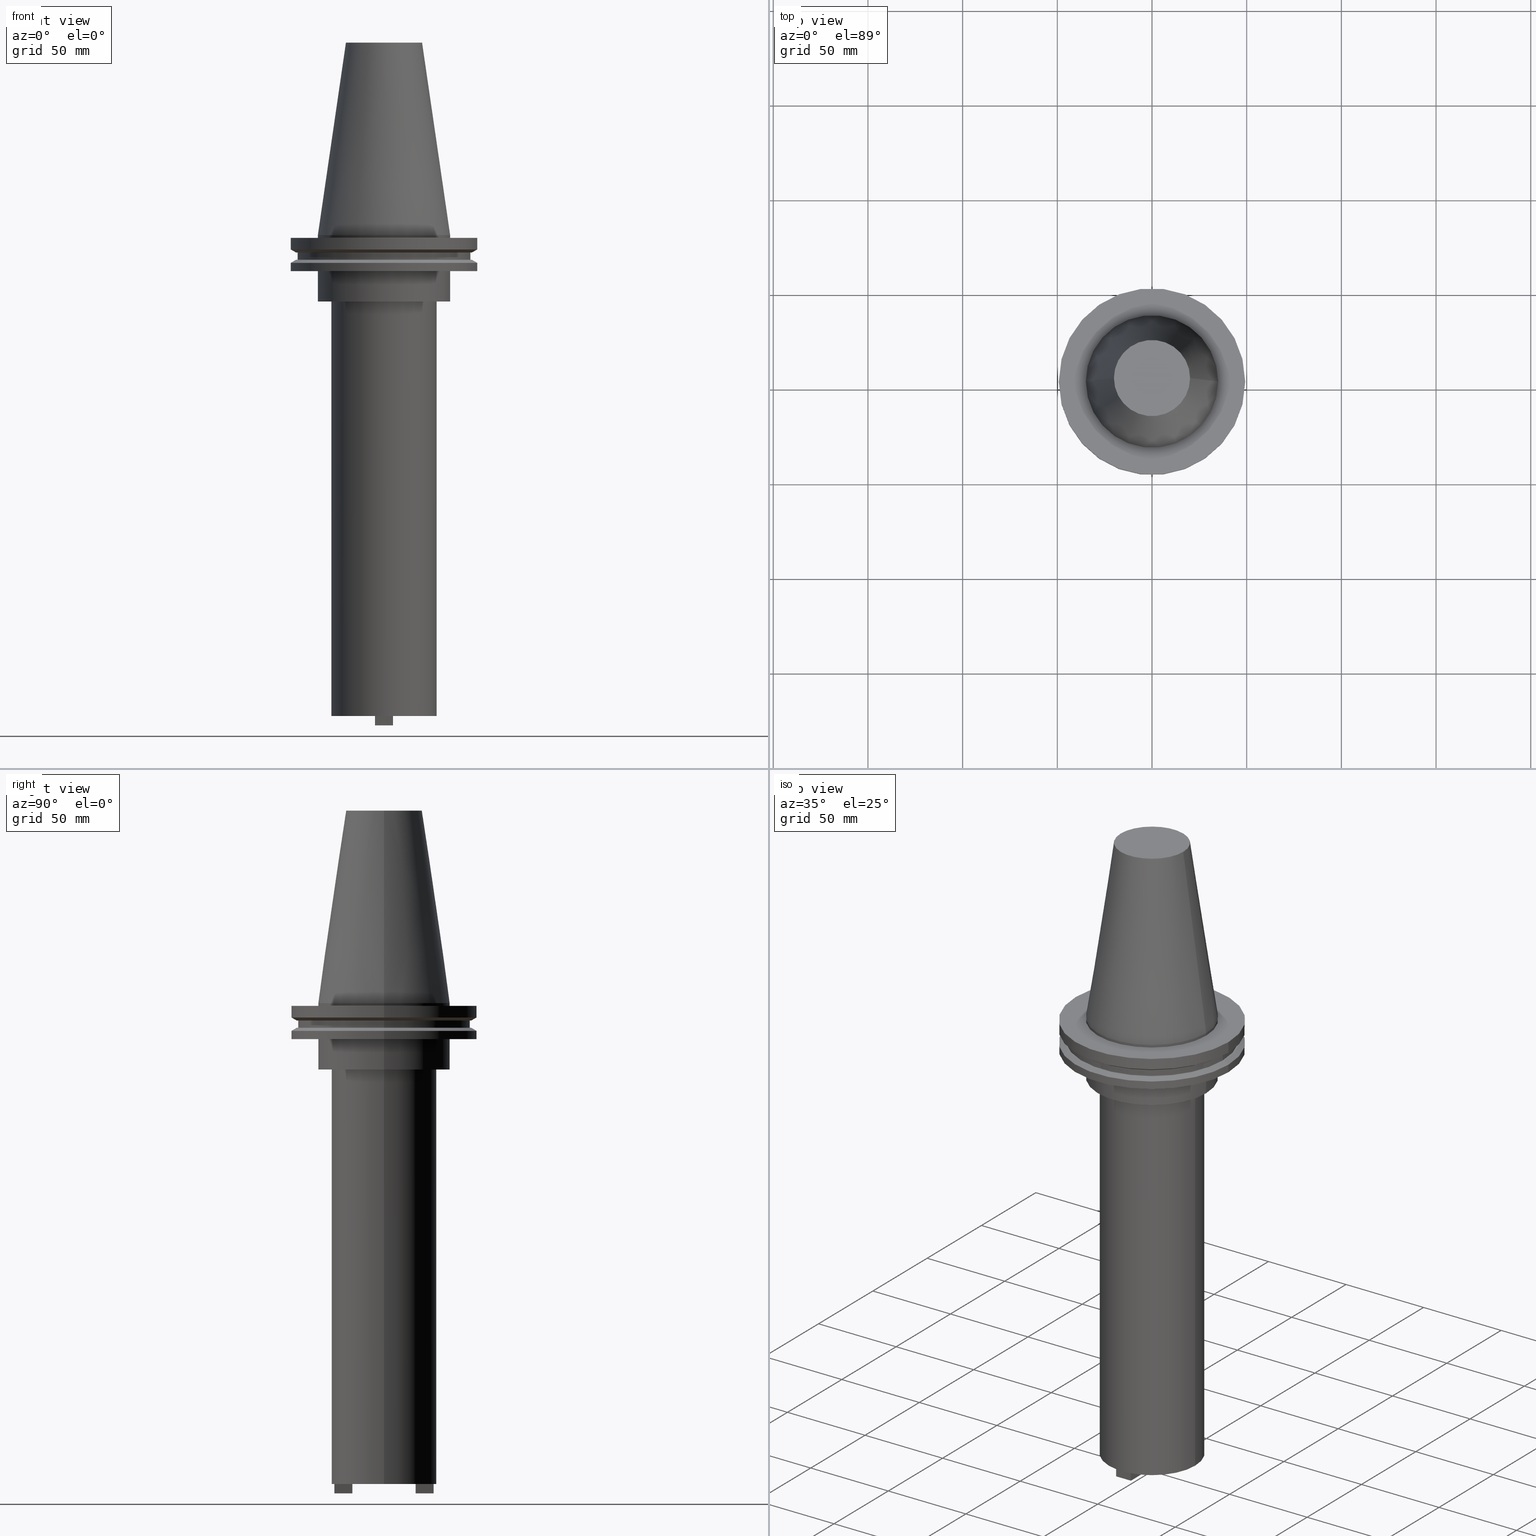
[diagram: canonical four-view strip — front | top / right | iso, engineering-drawing reading convention]
A machine part, canonical four-view strip (front | top / right | iso — engineering-drawing reading convention). The complete STEP part file that produces these views, byte-faithful:
ISO-10303-21;
HEADER;
FILE_DESCRIPTION (( 'STEP AP203' ),
    '1' );
FILE_NAME ('BCV50-SMC1_000-10.stp',
    '2022-03-03T19:55:01',
    ( '' ),
    ( '' ),
    'SwSTEP 2.0',
    'SolidWorks 2021',
    '' );
FILE_SCHEMA (( 'CONFIG_CONTROL_DESIGN' ));
ENDSEC;

DATA;
#1 = CARTESIAN_POINT ( 'NONE',  ( -5.754999999999994564, 7.047842329093010853E-16, 0.000000000000000000 ) ) ;
#2 = ORIENTED_EDGE ( 'NONE', *, *, #604, .T. ) ;
#3 = FACE_OUTER_BOUND ( 'NONE', #996, .T. ) ;
#4 = CARTESIAN_POINT ( 'NONE',  ( 0.000000000000000000, 0.000000000000000000, -13.05499999999999794 ) ) ;
#5 = FACE_BOUND ( 'NONE', #816, .T. ) ;
#6 = CARTESIAN_POINT ( 'NONE',  ( 0.000000000000000000, 0.000000000000000000, -14.65761014474876944 ) ) ;
#7 = CARTESIAN_POINT ( 'NONE',  ( 0.000000000000000000, 0.000000000000000000, -9.204999999999991189 ) ) ;
#8 = VERTEX_POINT ( 'NONE', #165 ) ;
#9 = VECTOR ( 'NONE', #239, 1000.000000000000000 ) ;
#10 = DIRECTION ( 'NONE',  ( -0.000000000000000000, -0.000000000000000000, 1.000000000000000000 ) ) ;
#11 = APPLICATION_PROTOCOL_DEFINITION ( 'international standard', 'config_control_design', 1994, #1086 ) ;
#12 = CARTESIAN_POINT ( 'NONE',  ( 0.000000000000000000, 0.000000000000000000, 0.000000000000000000 ) ) ;
#13 = DIRECTION ( 'NONE',  ( -1.000000000000000000, 0.000000000000000000, 0.000000000000000000 ) ) ;
#14 = ORIENTED_EDGE ( 'NONE', *, *, #219, .T. ) ;
#15 = PLANE ( 'NONE',  #716 ) ;
#16 = CARTESIAN_POINT ( 'NONE',  ( -4.762500000000000178, 26.20250000000000412, -258.9000000000000341 ) ) ;
#17 = DIRECTION ( 'NONE',  ( 1.000000000000000000, 0.000000000000000000, 0.000000000000000000 ) ) ;
#18 = CARTESIAN_POINT ( 'NONE',  ( 4.762500000000000178, -16.67749999999999844, -258.9000000000000341 ) ) ;
#19 = CIRCLE ( 'NONE', #867, 46.43919780457007818 ) ;
#20 = CARTESIAN_POINT ( 'NONE',  ( -34.92499999999999716, 4.277078946022130887E-15, -35.04999999999999716 ) ) ;
#21 = ORIENTED_EDGE ( 'NONE', *, *, #148, .T. ) ;
#22 = CIRCLE ( 'NONE', #640, 49.21500000000000341 ) ;
#23 = DIRECTION ( 'NONE',  ( 0.000000000000000000, -0.000000000000000000, 1.000000000000000000 ) ) ;
#24 = CARTESIAN_POINT ( 'NONE',  ( 0.000000000000000000, 0.000000000000000000, -35.04999999999999716 ) ) ;
#25 = AXIS2_PLACEMENT_3D ( 'NONE', #737, #843, #588 ) ;
#26 = EDGE_LOOP ( 'NONE', ( #970, #464 ) ) ;
#27 = CARTESIAN_POINT ( 'NONE',  ( -4.762500000000000178, 26.20250000000000412, -258.9000000000000341 ) ) ;
#28 = CARTESIAN_POINT ( 'NONE',  ( 0.000000000000000000, 0.000000000000000000, 0.000000000000000000 ) ) ;
#29 = FACE_OUTER_BOUND ( 'NONE', #1031, .T. ) ;
#30 = CYLINDRICAL_SURFACE ( 'NONE', #253, 49.21499999999998920 ) ;
#31 = AXIS2_PLACEMENT_3D ( 'NONE', #392, #1068, #431 ) ;
#32 = EDGE_LOOP ( 'NONE', ( #420, #888, #116, #649 ) ) ;
#33 = EDGE_CURVE ( 'NONE', #211, #860, #1049, .T. ) ;
#34 = VERTEX_POINT ( 'NONE', #384 ) ;
#35 = CARTESIAN_POINT ( 'NONE',  ( 0.000000000000000000, 0.000000000000000000, -14.65761014474876944 ) ) ;
#36 = ORIENTED_EDGE ( 'NONE', *, *, #397, .T. ) ;
#37 = EDGE_LOOP ( 'NONE', ( #1023, #587, #41, #469 ) ) ;
#38 = CALENDAR_DATE ( 2022, 3, 3 ) ;
#39 = DIRECTION ( 'NONE',  ( 1.000000000000000000, 0.000000000000000000, 0.000000000000000000 ) ) ;
#40 = DIRECTION ( 'NONE',  ( -0.000000000000000000, -0.000000000000000000, 1.000000000000000000 ) ) ;
#41 = ORIENTED_EDGE ( 'NONE', *, *, #484, .T. ) ;
#42 = AXIS2_PLACEMENT_3D ( 'NONE', #81, #154, #653 ) ;
#43 = EDGE_CURVE ( 'NONE', #570, #644, #140, .T. ) ;
#44 = ORIENTED_EDGE ( 'NONE', *, *, #617, .T. ) ;
#45 = EDGE_CURVE ( 'NONE', #850, #251, #19, .T. ) ;
#46 = DIRECTION ( 'NONE',  ( -0.000000000000000000, -0.000000000000000000, 1.000000000000000000 ) ) ;
#47 = CONICAL_SURFACE ( 'NONE', #572, 46.43919780457007818, 1.047197551196575205 ) ;
#48 = CARTESIAN_POINT ( 'NONE',  ( 49.21499999999999631, 0.000000000000000000, -1.499999999999987566 ) ) ;
#49 = AXIS2_PLACEMENT_3D ( 'NONE', #887, #200, #539 ) ;
#50 = ORIENTED_EDGE ( 'NONE', *, *, #98, .T. ) ;
#51 = VECTOR ( 'NONE', #923, 999.9999999999998863 ) ;
#52 = DIRECTION ( 'NONE',  ( -0.000000000000000000, -0.000000000000000000, 1.000000000000000000 ) ) ;
#53 = ORIENTED_EDGE ( 'NONE', *, *, #725, .F. ) ;
#54 = ORIENTED_EDGE ( 'NONE', *, *, #493, .F. ) ;
#55 = PLANE ( 'NONE',  #110 ) ;
#56 = LINE ( 'NONE', #749, #563 ) ;
#57 = ORIENTED_EDGE ( 'NONE', *, *, #874, .T. ) ;
#58 = ADVANCED_FACE ( 'NONE', ( #5, #1007 ), #847, .F. ) ;
#59 = EDGE_LOOP ( 'NONE', ( #206, #145, #231, #721 ) ) ;
#60 = CIRCLE ( 'NONE', #842, 27.80000000000000426 ) ;
#61 = PLANE ( 'NONE',  #31 ) ;
#62 = PLANE ( 'NONE',  #386 ) ;
#63 = VECTOR ( 'NONE', #955, 1000.000000000000000 ) ;
#64 = ORIENTED_EDGE ( 'NONE', *, *, #910, .F. ) ;
#65 = CARTESIAN_POINT ( 'NONE',  ( 0.000000000000000000, 0.000000000000000000, 101.5999999999999801 ) ) ;
#66 = CIRCLE ( 'NONE', #243, 49.21500000000000341 ) ;
#67 = CARTESIAN_POINT ( 'NONE',  ( 0.000000000000000000, 27.80000000000000071, -254.0000000000000000 ) ) ;
#68 = CARTESIAN_POINT ( 'NONE',  ( 0.000000000000000000, 0.000000000000000000, 0.000000000000000000 ) ) ;
#69 = DIRECTION ( 'NONE',  ( -0.000000000000000000, -0.000000000000000000, 1.000000000000000000 ) ) ;
#70 = ORIENTED_EDGE ( 'NONE', *, *, #892, .F. ) ;
#71 = FACE_OUTER_BOUND ( 'NONE', #616, .T. ) ;
#72 = CARTESIAN_POINT ( 'NONE',  ( 4.762500000000000178, -16.67749999999999844, -258.9000000000000341 ) ) ;
#73 = ADVANCED_FACE ( 'NONE', ( #680 ), #890, .F. ) ;
#74 = CARTESIAN_POINT ( 'NONE',  ( 0.000000000000000000, 0.000000000000000000, -35.04999999999999716 ) ) ;
#75 = VECTOR ( 'NONE', #941, 1000.000000000000000 ) ;
#76 = ORIENTED_EDGE ( 'NONE', *, *, #924, .F. ) ;
#77 = CARTESIAN_POINT ( 'NONE',  ( -4.762500000000000178, -26.20249999999999702, -258.9000000000000341 ) ) ;
#78 = DIRECTION ( 'NONE',  ( -0.000000000000000000, -0.000000000000000000, 1.000000000000000000 ) ) ;
#79 = ORIENTED_EDGE ( 'NONE', *, *, #954, .T. ) ;
#80 = PRODUCT_DEFINITION ( 'UNKNOWN', '', #743, #987 ) ;
#81 = CARTESIAN_POINT ( 'NONE',  ( 0.000000000000000000, 34.92499999999999716, -35.04999999999999716 ) ) ;
#82 = CARTESIAN_POINT ( 'NONE',  ( 0.000000000000000000, 0.000000000000000000, -19.04999999999999716 ) ) ;
#83 = ORIENTED_EDGE ( 'NONE', *, *, #797, .F. ) ;
#84 = CARTESIAN_POINT ( 'NONE',  ( 0.000000000000000000, 0.000000000000000000, 101.5999999999999943 ) ) ;
#85 = LINE ( 'NONE', #16, #891 ) ;
#86 = EDGE_LOOP ( 'NONE', ( #731, #831 ) ) ;
#87 = CIRCLE ( 'NONE', #513, 20.10819343178871321 ) ;
#88 = CARTESIAN_POINT ( 'NONE',  ( -4.762500000000000178, -26.20249999999999702, -258.9000000000000341 ) ) ;
#89 = ADVANCED_FACE ( 'NONE', ( #347 ), #949, .T. ) ;
#90 = CARTESIAN_POINT ( 'NONE',  ( 46.43919780457007818, 0.000000000000000000, -9.204999999999991189 ) ) ;
#91 = VERTEX_POINT ( 'NONE', #939 ) ;
#92 = CARTESIAN_POINT ( 'NONE',  ( -4.762500000000000178, 16.67750000000000554, -254.0000000000000000 ) ) ;
#93 = EDGE_CURVE ( 'NONE', #674, #442, #379, .T. ) ;
#94 = CARTESIAN_POINT ( 'NONE',  ( 0.000000000000000000, 0.000000000000000000, 0.000000000000000000 ) ) ;
#95 = CARTESIAN_POINT ( 'NONE',  ( 0.000000000000000000, 0.000000000000000000, -19.04999999999999716 ) ) ;
#96 = CARTESIAN_POINT ( 'NONE',  ( -27.80000000000000071, 3.404518101629642167E-15, -254.0000000000000000 ) ) ;
#97 = ORIENTED_EDGE ( 'NONE', *, *, #354, .T. ) ;
#98 = EDGE_CURVE ( 'NONE', #712, #311, #87, .T. ) ;
#99 = ADVANCED_FACE ( 'NONE', ( #195 ), #432, .T. ) ;
#100 = APPROVAL_DATE_TIME ( #520, #995 ) ;
#101 = CYLINDRICAL_SURFACE ( 'NONE', #885, 45.64500000000000313 ) ;
#102 = VECTOR ( 'NONE', #834, 1000.000000000000000 ) ;
#103 = DIRECTION ( 'NONE',  ( 0.000000000000000000, -1.000000000000000000, 0.000000000000000000 ) ) ;
#104 = ORIENTED_EDGE ( 'NONE', *, *, #1080, .T. ) ;
#105 = VECTOR ( 'NONE', #69, 1000.000000000000000 ) ;
#106 = DIRECTION ( 'NONE',  ( 1.000000000000000000, 0.000000000000000000, 0.000000000000000000 ) ) ;
#107 = CARTESIAN_POINT ( 'NONE',  ( -45.64500000000000313, 5.589900314708094957E-15, -13.05499999999999794 ) ) ;
#108 = AXIS2_PLACEMENT_3D ( 'NONE', #12, #283, #699 ) ;
#109 = ORIENTED_EDGE ( 'NONE', *, *, #439, .F. ) ;
#110 = AXIS2_PLACEMENT_3D ( 'NONE', #67, #320, #1078 ) ;
#111 = CALENDAR_DATE ( 2022, 3, 3 ) ;
#112 = LINE ( 'NONE', #267, #209 ) ;
#113 = DIRECTION ( 'NONE',  ( -0.000000000000000000, -0.000000000000000000, 1.000000000000000000 ) ) ;
#114 = EDGE_CURVE ( 'NONE', #130, #570, #811, .T. ) ;
#115 = CYLINDRICAL_SURFACE ( 'NONE', #376, 5.754999999999994564 ) ;
#116 = ORIENTED_EDGE ( 'NONE', *, *, #518, .F. ) ;
#117 = CARTESIAN_POINT ( 'NONE',  ( 4.762500000000000178, 26.20250000000000412, -254.0000000000000000 ) ) ;
#118 = ORIENTED_EDGE ( 'NONE', *, *, #302, .T. ) ;
#119 = VECTOR ( 'NONE', #328, 1000.000000000000000 ) ;
#120 = AXIS2_PLACEMENT_3D ( 'NONE', #370, #46, #128 ) ;
#121 = CARTESIAN_POINT ( 'NONE',  ( -4.762500000000000178, -26.20249999999999702, -254.0000000000000000 ) ) ;
#122 = AXIS2_PLACEMENT_3D ( 'NONE', #65, #585, #678 ) ;
#123 = LINE ( 'NONE', #799, #232 ) ;
#124 = ORIENTED_EDGE ( 'NONE', *, *, #1042, .F. ) ;
#125 = EDGE_CURVE ( 'NONE', #447, #300, #445, .T. ) ;
#126 = EDGE_LOOP ( 'NONE', ( #1055, #546, #1076, #171 ) ) ;
#127 = PERSON_AND_ORGANIZATION_ROLE ( 'classification_officer' ) ;
#128 = DIRECTION ( 'NONE',  ( 1.000000000000000000, 0.000000000000000000, 0.000000000000000000 ) ) ;
#129 = AXIS2_PLACEMENT_3D ( 'NONE', #94, #679, #357 ) ;
#130 = VERTEX_POINT ( 'NONE', #945 ) ;
#131 = CC_DESIGN_PERSON_AND_ORGANIZATION_ASSIGNMENT ( #600, #506, ( #80 ) ) ;
#132 = COORDINATED_UNIVERSAL_TIME_OFFSET ( 6, 0, .BEHIND. ) ;
#133 = ADVANCED_FACE ( 'NONE', ( #352 ), #101, .T. ) ;
#134 = DIRECTION ( 'NONE',  ( -0.000000000000000000, -0.000000000000000000, 1.000000000000000000 ) ) ;
#135 = AXIS2_PLACEMENT_3D ( 'NONE', #977, #556, #488 ) ;
#136 = CARTESIAN_POINT ( 'NONE',  ( 4.762500000000000178, -26.20249999999999702, -258.9000000000000341 ) ) ;
#137 = APPROVAL_STATUS ( 'not_yet_approved' ) ;
#138 = VECTOR ( 'NONE', #857, 1000.000000000000000 ) ;
#139 = AXIS2_PLACEMENT_3D ( 'NONE', #179, #859, #783 ) ;
#140 = LINE ( 'NONE', #723, #598 ) ;
#141 = EDGE_LOOP ( 'NONE', ( #361, #707, #223, #605 ) ) ;
#142 = CARTESIAN_POINT ( 'NONE',  ( 0.000000000000000000, 0.000000000000000000, 101.5999999999999943 ) ) ;
#143 = ADVANCED_FACE ( 'NONE', ( #853 ), #769, .T. ) ;
#144 = CARTESIAN_POINT ( 'NONE',  ( 5.754999999999994564, 0.000000000000000000, -35.04999999999999716 ) ) ;
#145 = ORIENTED_EDGE ( 'NONE', *, *, #157, .T. ) ;
#146 = LOCAL_TIME ( 13, 55, 1.000000000000000000, #938 ) ;
#147 = EDGE_LOOP ( 'NONE', ( #480, #344, #634, #14 ) ) ;
#148 = EDGE_CURVE ( 'NONE', #844, #1059, #112, .T. ) ;
#149 = AXIS2_PLACEMENT_3D ( 'NONE', #74, #166, #1089 ) ;
#150 = DIRECTION ( 'NONE',  ( 1.000000000000000000, 0.000000000000000000, 0.000000000000000000 ) ) ;
#151 = CARTESIAN_POINT ( 'NONE',  ( 0.000000000000000000, 46.43919780457007818, -9.204999999999998295 ) ) ;
#152 = ORIENTED_EDGE ( 'NONE', *, *, #1005, .T. ) ;
#153 = CARTESIAN_POINT ( 'NONE',  ( -46.43919780457007818, 5.857130358318727293E-15, -9.204999999999991189 ) ) ;
#154 = DIRECTION ( 'NONE',  ( 0.000000000000000000, -0.000000000000000000, 1.000000000000000000 ) ) ;
#155 = ORIENTED_EDGE ( 'NONE', *, *, #465, .F. ) ;
#156 = LINE ( 'NONE', #492, #1064 ) ;
#157 = EDGE_CURVE ( 'NONE', #674, #91, #608, .T. ) ;
#158 = AXIS2_PLACEMENT_3D ( 'NONE', #183, #782, #689 ) ;
#159 = DIRECTION ( 'NONE',  ( -0.000000000000000000, -0.000000000000000000, 1.000000000000000000 ) ) ;
#160 = LINE ( 'NONE', #407, #75 ) ;
#161 = EDGE_LOOP ( 'NONE', ( #943, #463, #337, #630 ) ) ;
#162 = LINE ( 'NONE', #331, #394 ) ;
#163 = EDGE_CURVE ( 'NONE', #739, #727, #332, .T. ) ;
#164 = CARTESIAN_POINT ( 'NONE',  ( -4.762500000000000178, 16.67750000000000554, -258.9000000000000341 ) ) ;
#165 = CARTESIAN_POINT ( 'NONE',  ( 27.80000000000000426, 0.000000000000000000, -35.04999999999999716 ) ) ;
#166 = DIRECTION ( 'NONE',  ( -0.000000000000000000, -0.000000000000000000, 1.000000000000000000 ) ) ;
#167 = FACE_OUTER_BOUND ( 'NONE', #322, .T. ) ;
#168 = ORIENTED_EDGE ( 'NONE', *, *, #208, .F. ) ;
#169 = DIRECTION ( 'NONE',  ( 1.000000000000000000, 0.000000000000000000, 0.000000000000000000 ) ) ;
#170 = APPROVAL_DATE_TIME ( #266, #199 ) ;
#171 = ORIENTED_EDGE ( 'NONE', *, *, #537, .T. ) ;
#172 = CARTESIAN_POINT ( 'NONE',  ( 4.762500000000000178, -16.67749999999999844, -258.9000000000000341 ) ) ;
#173 = ORIENTED_EDGE ( 'NONE', *, *, #576, .F. ) ;
#174 = VECTOR ( 'NONE', #103, 1000.000000000000000 ) ;
#175 = CARTESIAN_POINT ( 'NONE',  ( 0.000000000000000000, 0.000000000000000000, 101.5999999999999943 ) ) ;
#176 = PERSON_AND_ORGANIZATION ( #1081, #461 ) ;
#177 = DIRECTION ( 'NONE',  ( 0.000000000000000000, 1.000000000000000000, 0.000000000000000000 ) ) ;
#178 = CLOSED_SHELL ( 'NONE', ( #451, #143, #279, #314, #369, #133, #459, #704, #868, #884, #971, #180, #378, #700, #584, #849, #944, #705, #58, #561, #623, #500, #1038, #1021, #99, #841, #742, #547, #360, #611, #821, #1043, #89, #784, #662, #430, #73, #766 ) ) ;
#179 = CARTESIAN_POINT ( 'NONE',  ( 0.000000000000000000, 0.000000000000000000, -258.9000000000000341 ) ) ;
#180 = ADVANCED_FACE ( 'NONE', ( #29, #613 ), #695, .F. ) ;
#181 = VERTEX_POINT ( 'NONE', #1033 ) ;
#182 = CALENDAR_DATE ( 2022, 3, 3 ) ;
#183 = CARTESIAN_POINT ( 'NONE',  ( 0.000000000000000000, 0.000000000000000000, -258.9000000000000341 ) ) ;
#184 = FACE_OUTER_BOUND ( 'NONE', #189, .T. ) ;
#185 = CIRCLE ( 'NONE', #301, 34.92499999999999716 ) ;
#186 = ORIENTED_EDGE ( 'NONE', *, *, #1036, .F. ) ;
#187 = PERSON_AND_ORGANIZATION_ROLE ( 'creator' ) ;
#188 = CARTESIAN_POINT ( 'NONE',  ( 0.000000000000000000, 0.000000000000000000, -13.05499999999999794 ) ) ;
#189 = EDGE_LOOP ( 'NONE', ( #50, #703 ) ) ;
#190 = FACE_OUTER_BOUND ( 'NONE', #590, .T. ) ;
#191 = CONICAL_SURFACE ( 'NONE', #487, 34.92499999999999005, 0.1448138465474119452 ) ;
#192 = EDGE_CURVE ( 'NONE', #311, #712, #953, .T. ) ;
#193 = DIRECTION ( 'NONE',  ( -0.000000000000000000, -0.000000000000000000, 1.000000000000000000 ) ) ;
#194 = AXIS2_PLACEMENT_3D ( 'NONE', #35, #1044, #299 ) ;
#195 = FACE_OUTER_BOUND ( 'NONE', #197, .T. ) ;
#196 = LINE ( 'NONE', #609, #629 ) ;
#197 = EDGE_LOOP ( 'NONE', ( #1028, #224, #97, #856 ) ) ;
#198 = APPROVAL_DATE_TIME ( #282, #638 ) ;
#199 = APPROVAL ( #531, 'UNSPECIFIED' ) ;
#200 = DIRECTION ( 'NONE',  ( -1.000000000000000000, 0.000000000000000000, -0.000000000000000000 ) ) ;
#201 = EDGE_LOOP ( 'NONE', ( #395, #186 ) ) ;
#202 = DIRECTION ( 'NONE',  ( -0.000000000000000000, -0.000000000000000000, 1.000000000000000000 ) ) ;
#203 = EDGE_CURVE ( 'NONE', #541, #915, #249, .T. ) ;
#204 = VECTOR ( 'NONE', #846, 1000.000000000000000 ) ;
#205 = EDGE_LOOP ( 'NONE', ( #1000, #1035 ) ) ;
#206 = ORIENTED_EDGE ( 'NONE', *, *, #415, .T. ) ;
#207 = CARTESIAN_POINT ( 'NONE',  ( 49.21499999999998920, 0.000000000000000000, 101.5999999999999943 ) ) ;
#208 = EDGE_CURVE ( 'NONE', #739, #218, #1077, .T. ) ;
#209 = VECTOR ( 'NONE', #858, 1000.000000000000000 ) ;
#210 = DIRECTION ( 'NONE',  ( 1.000000000000000000, 0.000000000000000000, 0.000000000000000000 ) ) ;
#211 = VERTEX_POINT ( 'NONE', #916 ) ;
#212 = CARTESIAN_POINT ( 'NONE',  ( 0.000000000000000000, 0.000000000000000000, -35.04999999999999716 ) ) ;
#213 = DIRECTION ( 'NONE',  ( -1.000000000000000000, 0.000000000000000000, 0.000000000000000000 ) ) ;
#214 = ORIENTED_EDGE ( 'NONE', *, *, #733, .T. ) ;
#215 = CARTESIAN_POINT ( 'NONE',  ( -34.92499999999999716, 4.277078946022130887E-15, 101.5999999999999943 ) ) ;
#216 = AXIS2_PLACEMENT_3D ( 'NONE', #899, #399, #387 ) ;
#217 = ORIENTED_EDGE ( 'NONE', *, *, #45, .T. ) ;
#218 = VERTEX_POINT ( 'NONE', #256 ) ;
#219 = EDGE_CURVE ( 'NONE', #366, #524, #162, .T. ) ;
#220 = CARTESIAN_POINT ( 'NONE',  ( 49.21499999999998920, 0.000000000000000000, -14.65761014474876944 ) ) ;
#221 = CIRCLE ( 'NONE', #864, 49.21499999999998920 ) ;
#222 = DIRECTION ( 'NONE',  ( 1.000000000000000000, 0.000000000000000000, 0.000000000000000000 ) ) ;
#223 = ORIENTED_EDGE ( 'NONE', *, *, #797, .T. ) ;
#224 = ORIENTED_EDGE ( 'NONE', *, *, #1042, .T. ) ;
#225 = AXIS2_PLACEMENT_3D ( 'NONE', #1014, #1063, #342 ) ;
#226 = CARTESIAN_POINT ( 'NONE',  ( 0.000000000000000000, 0.000000000000000000, -35.04999999999999716 ) ) ;
#227 = EDGE_CURVE ( 'NONE', #727, #34, #591, .T. ) ;
#228 = MANIFOLD_SOLID_BREP ( 'Boss-Extrude1', #178 ) ;
#229 = CARTESIAN_POINT ( 'NONE',  ( 0.000000000000000000, 0.000000000000000000, -19.04999999999999716 ) ) ;
#230 = LINE ( 'NONE', #581, #240 ) ;
#231 = ORIENTED_EDGE ( 'NONE', *, *, #484, .F. ) ;
#232 = VECTOR ( 'NONE', #40, 1000.000000000000000 ) ;
#233 = FACE_OUTER_BOUND ( 'NONE', #963, .T. ) ;
#234 = DIRECTION ( 'NONE',  ( -0.1443082272672999988, 0.000000000000000000, -0.9895327864921755756 ) ) ;
#235 = EDGE_CURVE ( 'NONE', #772, #991, #66, .T. ) ;
#236 = ORIENTED_EDGE ( 'NONE', *, *, #493, .T. ) ;
#237 = LINE ( 'NONE', #404, #138 ) ;
#238 = LINE ( 'NONE', #164, #298 ) ;
#239 = DIRECTION ( 'NONE',  ( -0.000000000000000000, -1.000000000000000000, -0.000000000000000000 ) ) ;
#240 = VECTOR ( 'NONE', #921, 1000.000000000000000 ) ;
#241 = ORIENTED_EDGE ( 'NONE', *, *, #425, .T. ) ;
#242 = DIRECTION ( 'NONE',  ( -0.8660254037844169472, 0.000000000000000000, -0.5000000000000375255 ) ) ;
#243 = AXIS2_PLACEMENT_3D ( 'NONE', #845, #683, #512 ) ;
#244 = LINE ( 'NONE', #333, #443 ) ;
#245 = ORIENTED_EDGE ( 'NONE', *, *, #125, .F. ) ;
#246 = PLANE ( 'NONE',  #479 ) ;
#247 = DIRECTION ( 'NONE',  ( 1.000000000000000000, 0.000000000000000000, 0.000000000000000000 ) ) ;
#248 = EDGE_LOOP ( 'NONE', ( #104, #217 ) ) ;
#249 = LINE ( 'NONE', #1011, #454 ) ;
#250 = EDGE_CURVE ( 'NONE', #251, #91, #930, .T. ) ;
#251 = VERTEX_POINT ( 'NONE', #752 ) ;
#252 = DIRECTION ( 'NONE',  ( -0.000000000000000000, -0.000000000000000000, 1.000000000000000000 ) ) ;
#253 = AXIS2_PLACEMENT_3D ( 'NONE', #934, #428, #359 ) ;
#254 = LINE ( 'NONE', #90, #119 ) ;
#255 = ORIENTED_EDGE ( 'NONE', *, *, #988, .F. ) ;
#256 = CARTESIAN_POINT ( 'NONE',  ( -45.64500000000000313, 5.589900314708094957E-15, -9.204999999999991189 ) ) ;
#257 = DATE_AND_TIME ( #1013, #146 ) ;
#258 = EDGE_CURVE ( 'NONE', #1041, #772, #832, .T. ) ;
#259 = DIRECTION ( 'NONE',  ( -0.000000000000000000, -0.000000000000000000, 1.000000000000000000 ) ) ;
#260 = DIRECTION ( 'NONE',  ( 0.000000000000000000, 0.000000000000000000, -1.000000000000000000 ) ) ;
#261 = AXIS2_PLACEMENT_3D ( 'NONE', #82, #1003, #247 ) ;
#262 = ORIENTED_EDGE ( 'NONE', *, *, #698, .T. ) ;
#263 = CIRCLE ( 'NONE', #194, 49.21499999999998920 ) ;
#264 = DIRECTION ( 'NONE',  ( -0.000000000000000000, -0.000000000000000000, 1.000000000000000000 ) ) ;
#265 = VECTOR ( 'NONE', #837, 1000.000000000000000 ) ;
#266 = DATE_AND_TIME ( #111, #622 ) ;
#267 = CARTESIAN_POINT ( 'NONE',  ( 34.92499999999999716, 0.000000000000000000, 101.5999999999999943 ) ) ;
#268 = DIRECTION ( 'NONE',  ( -1.000000000000000000, 0.000000000000000000, -0.000000000000000000 ) ) ;
#269 = VERTEX_POINT ( 'NONE', #77 ) ;
#270 = PERSON_AND_ORGANIZATION ( #1081, #461 ) ;
#271 = DIRECTION ( 'NONE',  ( 1.000000000000000000, 0.000000000000000000, 0.000000000000000000 ) ) ;
#272 = CARTESIAN_POINT ( 'NONE',  ( 27.80000000000000426, 0.000000000000000000, 0.000000000000000000 ) ) ;
#273 = ORIENTED_EDGE ( 'NONE', *, *, #235, .T. ) ;
#274 = EDGE_CURVE ( 'NONE', #311, #372, #672, .T. ) ;
#275 = VECTOR ( 'NONE', #824, 1000.000000000000000 ) ;
#276 = CIRCLE ( 'NONE', #567, 34.92499999999999005 ) ;
#277 = CARTESIAN_POINT ( 'NONE',  ( 0.000000000000000000, 34.92499999999999716, -35.04999999999999716 ) ) ;
#278 = CARTESIAN_POINT ( 'NONE',  ( -20.10819343178871321, 0.000000000000000000, 101.5999999999999801 ) ) ;
#279 = ADVANCED_FACE ( 'NONE', ( #71 ), #992, .T. ) ;
#280 = ORIENTED_EDGE ( 'NONE', *, *, #398, .F. ) ;
#281 = EDGE_CURVE ( 'NONE', #1059, #956, #665, .T. ) ;
#282 = DATE_AND_TIME ( #38, #424 ) ;
#283 = DIRECTION ( 'NONE',  ( -0.000000000000000000, -0.000000000000000000, 1.000000000000000000 ) ) ;
#284 = DIRECTION ( 'NONE',  ( -0.000000000000000000, -0.000000000000000000, 1.000000000000000000 ) ) ;
#285 = ORIENTED_EDGE ( 'NONE', *, *, #33, .F. ) ;
#286 = FACE_OUTER_BOUND ( 'NONE', #667, .T. ) ;
#287 = LOCAL_TIME ( 13, 55, 1.000000000000000000, #525 ) ;
#288 = FACE_OUTER_BOUND ( 'NONE', #390, .T. ) ;
#289 = ORIENTED_EDGE ( 'NONE', *, *, #988, .T. ) ;
#290 = DIRECTION ( 'NONE',  ( 1.000000000000000000, -0.000000000000000000, -0.000000000000000000 ) ) ;
#291 = EDGE_CURVE ( 'NONE', #1071, #318, #410, .T. ) ;
#292 = CARTESIAN_POINT ( 'NONE',  ( 4.762500000000000178, -26.20249999999999702, -254.0000000000000000 ) ) ;
#293 = ORIENTED_EDGE ( 'NONE', *, *, #93, .T. ) ;
#294 = PERSON_AND_ORGANIZATION ( #1081, #461 ) ;
#295 = CIRCLE ( 'NONE', #826, 5.754999999999994564 ) ;
#296 = FACE_OUTER_BOUND ( 'NONE', #86, .T. ) ;
#297 = ORIENTED_EDGE ( 'NONE', *, *, #960, .T. ) ;
#298 = VECTOR ( 'NONE', #78, 1000.000000000000000 ) ;
#299 = DIRECTION ( 'NONE',  ( 1.000000000000000000, 0.000000000000000000, 0.000000000000000000 ) ) ;
#300 = VERTEX_POINT ( 'NONE', #323 ) ;
#301 = AXIS2_PLACEMENT_3D ( 'NONE', #229, #661, #904 ) ;
#302 = EDGE_CURVE ( 'NONE', #366, #790, #419, .T. ) ;
#303 = EDGE_LOOP ( 'NONE', ( #241, #952, #927, #575 ) ) ;
#304 = DIRECTION ( 'NONE',  ( -1.000000000000000000, 0.000000000000000000, 0.000000000000000000 ) ) ;
#305 = VERTEX_POINT ( 'NONE', #664 ) ;
#306 = ORIENTED_EDGE ( 'NONE', *, *, #148, .F. ) ;
#307 = CARTESIAN_POINT ( 'NONE',  ( 49.21500000000000341, 0.000000000000000000, -7.602389855251287187 ) ) ;
#308 = VECTOR ( 'NONE', #848, 1000.000000000000000 ) ;
#309 = DIRECTION ( 'NONE',  ( 0.000000000000000000, -1.000000000000000000, -0.000000000000000000 ) ) ;
#310 = AXIS2_PLACEMENT_3D ( 'NONE', #774, #601, #17 ) ;
#311 = VERTEX_POINT ( 'NONE', #998 ) ;
#312 = EDGE_CURVE ( 'NONE', #181, #1071, #156, .T. ) ;
#313 = DIRECTION ( 'NONE',  ( 1.000000000000000000, 0.000000000000000000, 0.000000000000000000 ) ) ;
#314 = ADVANCED_FACE ( 'NONE', ( #3 ), #659, .T. ) ;
#315 = DIRECTION ( 'NONE',  ( -0.000000000000000000, -0.000000000000000000, 1.000000000000000000 ) ) ;
#316 = APPROVAL_PERSON_ORGANIZATION ( #294, #638, #968 ) ;
#317 = CARTESIAN_POINT ( 'NONE',  ( 0.000000000000000000, 0.000000000000000000, -35.04999999999999716 ) ) ;
#318 = VERTEX_POINT ( 'NONE', #92 ) ;
#319 = CARTESIAN_POINT ( 'NONE',  ( 4.762500000000000178, 16.67750000000000554, -254.0000000000000000 ) ) ;
#320 = DIRECTION ( 'NONE',  ( 0.000000000000000000, -0.000000000000000000, 1.000000000000000000 ) ) ;
#321 = CARTESIAN_POINT ( 'NONE',  ( -34.92499999999999005, 4.277078946022130098E-15, -1.499999999999987566 ) ) ;
#322 = EDGE_LOOP ( 'NONE', ( #507, #491, #976, #152 ) ) ;
#323 = CARTESIAN_POINT ( 'NONE',  ( 4.762500000000000178, 26.20250000000000412, -258.9000000000000341 ) ) ;
#324 = FACE_OUTER_BOUND ( 'NONE', #474, .T. ) ;
#325 = ORIENTED_EDGE ( 'NONE', *, *, #931, .T. ) ;
#326 = CYLINDRICAL_SURFACE ( 'NONE', #25, 45.64500000000000313 ) ;
#327 = CIRCLE ( 'NONE', #753, 45.64500000000000313 ) ;
#328 = DIRECTION ( 'NONE',  ( 0.8660254037844273833, 0.000000000000000000, 0.5000000000000195399 ) ) ;
#329 = PRODUCT_DEFINITION_SHAPE ( 'NONE', 'NONE',  #80 ) ;
#330 = ORIENTED_EDGE ( 'NONE', *, *, #208, .T. ) ;
#331 = CARTESIAN_POINT ( 'NONE',  ( -4.762500000000000178, -16.67749999999999844, -258.9000000000000341 ) ) ;
#332 = CIRCLE ( 'NONE', #543, 45.64500000000000313 ) ;
#333 = CARTESIAN_POINT ( 'NONE',  ( 49.21499999999999631, 0.000000000000000000, 101.5999999999999943 ) ) ;
#334 = ORIENTED_EDGE ( 'NONE', *, *, #291, .T. ) ;
#335 = LINE ( 'NONE', #676, #481 ) ;
#336 = VECTOR ( 'NONE', #913, 1000.000000000000114 ) ;
#337 = ORIENTED_EDGE ( 'NONE', *, *, #576, .T. ) ;
#338 = SECURITY_CLASSIFICATION ( '', '', #1032 ) ;
#339 = DIRECTION ( 'NONE',  ( -0.8660254037844273833, 1.060575238724893110E-16, 0.5000000000000195399 ) ) ;
#340 = EDGE_CURVE ( 'NONE', #452, #844, #1018, .T. ) ;
#341 = PERSON_AND_ORGANIZATION_ROLE ( 'design_owner' ) ;
#342 = DIRECTION ( 'NONE',  ( -1.000000000000000000, 0.000000000000000000, -0.000000000000000000 ) ) ;
#343 = LINE ( 'NONE', #508, #308 ) ;
#344 = ORIENTED_EDGE ( 'NONE', *, *, #1005, .F. ) ;
#345 = DIRECTION ( 'NONE',  ( -0.000000000000000000, -0.000000000000000000, 1.000000000000000000 ) ) ;
#346 =( LENGTH_UNIT ( ) NAMED_UNIT ( * ) SI_UNIT ( .MILLI., .METRE. ) );
#347 = FACE_OUTER_BOUND ( 'NONE', #1088, .T. ) ;
#348 = CARTESIAN_POINT ( 'NONE',  ( 0.000000000000000000, 0.000000000000000000, 0.000000000000000000 ) ) ;
#349 = CARTESIAN_POINT ( 'NONE',  ( -4.762500000000000178, 26.20250000000000412, -258.9000000000000341 ) ) ;
#350 = EDGE_LOOP ( 'NONE', ( #663, #947, #720, #805 ) ) ;
#351 = AXIS2_PLACEMENT_3D ( 'NONE', #136, #177, #23 ) ;
#352 = FACE_OUTER_BOUND ( 'NONE', #873, .T. ) ;
#353 = DIRECTION ( 'NONE',  ( 1.000000000000000000, 0.000000000000000000, 0.000000000000000000 ) ) ;
#354 = EDGE_CURVE ( 'NONE', #130, #372, #237, .T. ) ;
#355 = ORIENTED_EDGE ( 'NONE', *, *, #258, .T. ) ;
#356 = CARTESIAN_POINT ( 'NONE',  ( -4.762500000000000178, -16.67749999999999844, -258.9000000000000341 ) ) ;
#357 = DIRECTION ( 'NONE',  ( 1.000000000000000000, 0.000000000000000000, 0.000000000000000000 ) ) ;
#358 = DIRECTION ( 'NONE',  ( -0.000000000000000000, -0.000000000000000000, 1.000000000000000000 ) ) ;
#359 = DIRECTION ( 'NONE',  ( 1.000000000000000000, 0.000000000000000000, 0.000000000000000000 ) ) ;
#360 = ADVANCED_FACE ( 'NONE', ( #286 ), #15, .F. ) ;
#361 = ORIENTED_EDGE ( 'NONE', *, *, #801, .F. ) ;
#362 = CARTESIAN_POINT ( 'NONE',  ( 0.000000000000000000, 0.000000000000000000, -9.204999999999991189 ) ) ;
#363 = CIRCLE ( 'NONE', #466, 46.43919780457007818 ) ;
#364 = DIRECTION ( 'NONE',  ( 0.000000000000000000, -0.000000000000000000, 1.000000000000000000 ) ) ;
#365 = CARTESIAN_POINT ( 'NONE',  ( -49.21500000000000341, 6.027099222003699404E-15, -7.602389855251287187 ) ) ;
#366 = VERTEX_POINT ( 'NONE', #356 ) ;
#367 = DIRECTION ( 'NONE',  ( 1.000000000000000000, 0.000000000000000000, 0.000000000000000000 ) ) ;
#368 = ORIENTED_EDGE ( 'NONE', *, *, #684, .T. ) ;
#369 = ADVANCED_FACE ( 'NONE', ( #190 ), #47, .T. ) ;
#370 = CARTESIAN_POINT ( 'NONE',  ( 0.000000000000000000, 0.000000000000000000, -254.0000000000000000 ) ) ;
#371 = CARTESIAN_POINT ( 'NONE',  ( 4.762500000000000178, -26.20249999999999346, -254.0000000000000000 ) ) ;
#372 = VERTEX_POINT ( 'NONE', #990 ) ;
#373 = SHAPE_DEFINITION_REPRESENTATION ( #329, #694 ) ;
#374 = CYLINDRICAL_SURFACE ( 'NONE', #1065, 34.92499999999999716 ) ;
#375 = ORIENTED_EDGE ( 'NONE', *, *, #828, .F. ) ;
#376 = AXIS2_PLACEMENT_3D ( 'NONE', #1022, #791, #778 ) ;
#377 = CARTESIAN_POINT ( 'NONE',  ( 4.762500000000000178, -26.20249999999999702, -258.9000000000000341 ) ) ;
#378 = ADVANCED_FACE ( 'NONE', ( #738 ), #191, .T. ) ;
#379 = CIRCLE ( 'NONE', #780, 49.21499999999998920 ) ;
#380 = DIRECTION ( 'NONE',  ( -0.000000000000000000, -0.000000000000000000, 1.000000000000000000 ) ) ;
#381 = EDGE_LOOP ( 'NONE', ( #448, #2 ) ) ;
#382 = AXIS2_PLACEMENT_3D ( 'NONE', #959, #1046, #304 ) ;
#383 = DIRECTION ( 'NONE',  ( 1.000000000000000000, 0.000000000000000000, 0.000000000000000000 ) ) ;
#384 = CARTESIAN_POINT ( 'NONE',  ( 45.64500000000000313, 0.000000000000000000, -9.204999999999991189 ) ) ;
#385 = ORIENTED_EDGE ( 'NONE', *, *, #43, .T. ) ;
#386 = AXIS2_PLACEMENT_3D ( 'NONE', #172, #388, #819 ) ;
#387 = DIRECTION ( 'NONE',  ( 1.000000000000000000, 0.000000000000000000, 0.000000000000000000 ) ) ;
#388 = DIRECTION ( 'NONE',  ( 0.000000000000000000, -1.000000000000000000, -0.000000000000000000 ) ) ;
#389 = ORIENTED_EDGE ( 'NONE', *, *, #833, .F. ) ;
#390 = EDGE_LOOP ( 'NONE', ( #643, #1045, #929, #306 ) ) ;
#391 = AXIS2_PLACEMENT_3D ( 'NONE', #175, #851, #486 ) ;
#392 = CARTESIAN_POINT ( 'NONE',  ( 4.762500000000000178, 16.67750000000000554, -258.9000000000000341 ) ) ;
#393 = FACE_OUTER_BOUND ( 'NONE', #895, .T. ) ;
#394 = VECTOR ( 'NONE', #10, 1000.000000000000000 ) ;
#395 = ORIENTED_EDGE ( 'NONE', *, *, #709, .F. ) ;
#396 = DIRECTION ( 'NONE',  ( -0.000000000000000000, -0.000000000000000000, 1.000000000000000000 ) ) ;
#397 = EDGE_CURVE ( 'NONE', #511, #554, #295, .T. ) ;
#398 = EDGE_CURVE ( 'NONE', #682, #991, #254, .T. ) ;
#399 = DIRECTION ( 'NONE',  ( -0.000000000000000000, -0.000000000000000000, 1.000000000000000000 ) ) ;
#400 = CONICAL_SURFACE ( 'NONE', #382, 34.92499999999999005, 0.1448138465474119452 ) ;
#401 = DIRECTION ( 'NONE',  ( 1.000000000000000000, 0.000000000000000000, 0.000000000000000000 ) ) ;
#402 = DIRECTION ( 'NONE',  ( -1.000000000000000000, 0.000000000000000000, 0.000000000000000000 ) ) ;
#403 = ORIENTED_EDGE ( 'NONE', *, *, #203, .T. ) ;
#404 = CARTESIAN_POINT ( 'NONE',  ( 34.92499999999999005, 0.000000000000000000, 101.5999999999999943 ) ) ;
#405 = FACE_BOUND ( 'NONE', #597, .T. ) ;
#406 = EDGE_CURVE ( 'NONE', #211, #554, #1075, .T. ) ;
#407 = CARTESIAN_POINT ( 'NONE',  ( -4.762500000000000178, 26.20250000000000412, -254.0000000000000000 ) ) ;
#408 = DIRECTION ( 'NONE',  ( -0.000000000000000000, -0.000000000000000000, 1.000000000000000000 ) ) ;
#409 = VERTEX_POINT ( 'NONE', #670 ) ;
#410 = LINE ( 'NONE', #319, #792 ) ;
#411 = CYLINDRICAL_SURFACE ( 'NONE', #681, 49.21499999999999631 ) ;
#412 = ORIENTED_EDGE ( 'NONE', *, *, #691, .F. ) ;
#413 = CARTESIAN_POINT ( 'NONE',  ( 0.000000000000000000, 0.000000000000000000, 101.5999999999999943 ) ) ;
#414 = AXIS2_PLACEMENT_3D ( 'NONE', #965, #1040, #550 ) ;
#415 = EDGE_CURVE ( 'NONE', #442, #674, #596, .T. ) ;
#416 = PLANE ( 'NONE',  #911 ) ;
#417 = VECTOR ( 'NONE', #889, 1000.000000000000000 ) ;
#418 = ORIENTED_EDGE ( 'NONE', *, *, #880, .F. ) ;
#419 = LINE ( 'NONE', #426, #615 ) ;
#420 = ORIENTED_EDGE ( 'NONE', *, *, #854, .F. ) ;
#421 = DIRECTION ( 'NONE',  ( -0.000000000000000000, -0.000000000000000000, 1.000000000000000000 ) ) ;
#422 = CARTESIAN_POINT ( 'NONE',  ( 27.80000000000000071, 0.000000000000000000, -254.0000000000000000 ) ) ;
#423 = ORIENTED_EDGE ( 'NONE', *, *, #406, .T. ) ;
#424 = LOCAL_TIME ( 13, 55, 1.000000000000000000, #717 ) ;
#425 = EDGE_CURVE ( 'NONE', #559, #1071, #230, .T. ) ;
#426 = CARTESIAN_POINT ( 'NONE',  ( 4.762500000000000178, -16.67749999999999844, -258.9000000000000341 ) ) ;
#427 = CARTESIAN_POINT ( 'NONE',  ( 0.000000000000000000, 0.000000000000000000, 101.5999999999999943 ) ) ;
#428 = DIRECTION ( 'NONE',  ( -0.000000000000000000, -0.000000000000000000, 1.000000000000000000 ) ) ;
#429 = ORIENTED_EDGE ( 'NONE', *, *, #960, .F. ) ;
#430 = ADVANCED_FACE ( 'NONE', ( #167 ), #416, .F. ) ;
#431 = DIRECTION ( 'NONE',  ( 0.000000000000000000, -0.000000000000000000, 1.000000000000000000 ) ) ;
#432 = CYLINDRICAL_SURFACE ( 'NONE', #310, 34.92499999999999005 ) ;
#433 = APPLICATION_CONTEXT ( 'configuration controlled 3d designs of mechanical parts and assemblies' ) ;
#434 = FACE_OUTER_BOUND ( 'NONE', #578, .T. ) ;
#435 = VERTEX_POINT ( 'NONE', #422 ) ;
#436 = VECTOR ( 'NONE', #710, 1000.000000000000000 ) ;
#437 = DIRECTION ( 'NONE',  ( 1.000000000000000000, 0.000000000000000000, 0.000000000000000000 ) ) ;
#438 = DIRECTION ( 'NONE',  ( -0.000000000000000000, -0.000000000000000000, 1.000000000000000000 ) ) ;
#439 = EDGE_CURVE ( 'NONE', #34, #218, #327, .T. ) ;
#440 = CARTESIAN_POINT ( 'NONE',  ( 0.000000000000000000, 0.000000000000000000, 101.5999999999999801 ) ) ;
#441 = DIRECTION ( 'NONE',  ( 1.000000000000000000, -0.000000000000000000, 0.000000000000000000 ) ) ;
#442 = VERTEX_POINT ( 'NONE', #771 ) ;
#443 = VECTOR ( 'NONE', #1073, 1000.000000000000000 ) ;
#444 = CARTESIAN_POINT ( 'NONE',  ( 4.762500000000000178, 16.67750000000000554, -254.0000000000000000 ) ) ;
#445 = LINE ( 'NONE', #593, #967 ) ;
#446 = FACE_OUTER_BOUND ( 'NONE', #793, .T. ) ;
#447 = VERTEX_POINT ( 'NONE', #349 ) ;
#448 = ORIENTED_EDGE ( 'NONE', *, *, #281, .T. ) ;
#449 = PLANE ( 'NONE',  #898 ) ;
#450 = EDGE_LOOP ( 'NONE', ( #54, #273, #79, #429 ) ) ;
#451 = ADVANCED_FACE ( 'NONE', ( #872 ), #115, .F. ) ;
#452 = VERTEX_POINT ( 'NONE', #20 ) ;
#453 = CONICAL_SURFACE ( 'NONE', #594, 46.43919780457007818, 1.047197551196575205 ) ;
#454 = VECTOR ( 'NONE', #765, 1000.000000000000000 ) ;
#455 = LINE ( 'NONE', #806, #336 ) ;
#456 = EDGE_LOOP ( 'NONE', ( #535, #293, #610, #375 ) ) ;
#457 = CC_DESIGN_DATE_AND_TIME_ASSIGNMENT ( #257, #592, ( #80 ) ) ;
#458 = ORIENTED_EDGE ( 'NONE', *, *, #617, .F. ) ;
#459 = ADVANCED_FACE ( 'NONE', ( #540 ), #1083, .T. ) ;
#460 = AXIS2_PLACEMENT_3D ( 'NONE', #646, #202, #1056 ) ;
#461 = ORGANIZATION ( 'UNSPECIFIED', 'UNSPECIFIED', '' ) ;
#462 = FACE_OUTER_BOUND ( 'NONE', #161, .T. ) ;
#463 = ORIENTED_EDGE ( 'NONE', *, *, #274, .T. ) ;
#464 = ORIENTED_EDGE ( 'NONE', *, *, #926, .T. ) ;
#465 = EDGE_CURVE ( 'NONE', #485, #687, #702, .T. ) ;
#466 = AXIS2_PLACEMENT_3D ( 'NONE', #4, #193, #786 ) ;
#467 = DIRECTION ( 'NONE',  ( -0.000000000000000000, -0.000000000000000000, 1.000000000000000000 ) ) ;
#468 = VECTOR ( 'NONE', #980, 1000.000000000000000 ) ;
#469 = ORIENTED_EDGE ( 'NONE', *, *, #250, .F. ) ;
#470 = ORIENTED_EDGE ( 'NONE', *, *, #274, .F. ) ;
#471 = AXIS2_PLACEMENT_3D ( 'NONE', #24, #260, #686 ) ;
#472 = FACE_BOUND ( 'NONE', #381, .T. ) ;
#473 = DIRECTION ( 'NONE',  ( 0.000000000000000000, 0.000000000000000000, -1.000000000000000000 ) ) ;
#474 = EDGE_LOOP ( 'NONE', ( #458, #70 ) ) ;
#475 = EDGE_LOOP ( 'NONE', ( #1048, #418 ) ) ;
#476 = CARTESIAN_POINT ( 'NONE',  ( 0.000000000000000000, 0.000000000000000000, -9.204999999999991189 ) ) ;
#477 = LINE ( 'NONE', #292, #896 ) ;
#478 = EDGE_LOOP ( 'NONE', ( #285, #423, #1054, #53 ) ) ;
#479 = AXIS2_PLACEMENT_3D ( 'NONE', #151, #989, #401 ) ;
#480 = ORIENTED_EDGE ( 'NONE', *, *, #1027, .T. ) ;
#481 = VECTOR ( 'NONE', #234, 999.9999999999998863 ) ;
#482 = DIRECTION ( 'NONE',  ( -1.000000000000000000, 0.000000000000000000, -0.000000000000000000 ) ) ;
#483 = CARTESIAN_POINT ( 'NONE',  ( -4.762500000000000178, -26.20249999999999702, -258.9000000000000341 ) ) ;
#484 = EDGE_CURVE ( 'NONE', #966, #91, #221, .T. ) ;
#485 = VERTEX_POINT ( 'NONE', #48 ) ;
#486 = DIRECTION ( 'NONE',  ( 1.000000000000000000, 0.000000000000000000, 0.000000000000000000 ) ) ;
#487 = AXIS2_PLACEMENT_3D ( 'NONE', #750, #757, #402 ) ;
#488 = DIRECTION ( 'NONE',  ( 1.000000000000000000, 0.000000000000000000, 0.000000000000000000 ) ) ;
#489 = CYLINDRICAL_SURFACE ( 'NONE', #972, 34.92499999999999716 ) ;
#490 = AXIS2_PLACEMENT_3D ( 'NONE', #277, #364, #870 ) ;
#491 = ORIENTED_EDGE ( 'NONE', *, *, #698, .F. ) ;
#492 = CARTESIAN_POINT ( 'NONE',  ( 4.762500000000000178, 16.67750000000000554, -258.9000000000000341 ) ) ;
#493 = EDGE_CURVE ( 'NONE', #772, #687, #719, .T. ) ;
#494 = CARTESIAN_POINT ( 'NONE',  ( 0.000000000000000000, 0.000000000000000000, -1.499999999999987566 ) ) ;
#495 = AXIS2_PLACEMENT_3D ( 'NONE', #476, #748, #313 ) ;
#496 = FACE_OUTER_BOUND ( 'NONE', #671, .T. ) ;
#497 = ORIENTED_EDGE ( 'NONE', *, *, #227, .F. ) ;
#498 = CARTESIAN_POINT ( 'NONE',  ( 45.64500000000000313, 0.000000000000000000, 101.5999999999999943 ) ) ;
#499 = DIRECTION ( 'NONE',  ( 0.000000000000000000, 0.000000000000000000, -1.000000000000000000 ) ) ;
#500 = ADVANCED_FACE ( 'NONE', ( #1052 ), #453, .T. ) ;
#501 = DIRECTION ( 'NONE',  ( -0.000000000000000000, -0.000000000000000000, 1.000000000000000000 ) ) ;
#502 = CARTESIAN_POINT ( 'NONE',  ( 4.762500000000000178, 26.20250000000000412, -254.0000000000000000 ) ) ;
#503 = CARTESIAN_POINT ( 'NONE',  ( 4.762500000000000178, -26.20249999999999702, -258.9000000000000341 ) ) ;
#504 = EDGE_LOOP ( 'NONE', ( #334, #715, #1004, #697 ) ) ;
#505 = DIRECTION ( 'NONE',  ( -1.000000000000000000, 0.000000000000000000, 0.000000000000000000 ) ) ;
#506 = PERSON_AND_ORGANIZATION_ROLE ( 'creator' ) ;
#507 = ORIENTED_EDGE ( 'NONE', *, *, #518, .T. ) ;
#508 = CARTESIAN_POINT ( 'NONE',  ( -4.762500000000000178, 26.20250000000000412, -258.9000000000000341 ) ) ;
#509 = DIRECTION ( 'NONE',  ( 1.000000000000000000, 0.000000000000000000, 0.000000000000000000 ) ) ;
#510 = AXIS2_PLACEMENT_3D ( 'NONE', #88, #441, #1034 ) ;
#511 = VERTEX_POINT ( 'NONE', #144 ) ;
#512 = DIRECTION ( 'NONE',  ( 1.000000000000000000, 0.000000000000000000, 0.000000000000000000 ) ) ;
#513 = AXIS2_PLACEMENT_3D ( 'NONE', #440, #521, #515 ) ;
#514 = APPROVAL_STATUS ( 'not_yet_approved' ) ;
#515 = DIRECTION ( 'NONE',  ( 1.000000000000000000, 0.000000000000000000, 0.000000000000000000 ) ) ;
#516 = LINE ( 'NONE', #701, #174 ) ;
#517 = ORIENTED_EDGE ( 'NONE', *, *, #802, .F. ) ;
#518 = EDGE_CURVE ( 'NONE', #555, #541, #477, .T. ) ;
#519 = APPROVAL_PERSON_ORGANIZATION ( #176, #995, #688 ) ;
#520 = DATE_AND_TIME ( #182, #287 ) ;
#521 = DIRECTION ( 'NONE',  ( -0.000000000000000000, -0.000000000000000000, 1.000000000000000000 ) ) ;
#522 = PRODUCT ( 'BCV50-SMC1_000-10', 'BCV50-SMC1_000-10', '', ( #760 ) ) ;
#523 = CARTESIAN_POINT ( 'NONE',  ( 45.64500000000000313, 0.000000000000000000, -13.05499999999999794 ) ) ;
#524 = VERTEX_POINT ( 'NONE', #881 ) ;
#525 = COORDINATED_UNIVERSAL_TIME_OFFSET ( 6, 0, .BEHIND. ) ;
#526 = DIRECTION ( 'NONE',  ( -0.000000000000000000, -0.000000000000000000, 1.000000000000000000 ) ) ;
#527 = CARTESIAN_POINT ( 'NONE',  ( -27.80000000000000426, 3.404518101629642562E-15, 0.000000000000000000 ) ) ;
#528 = VECTOR ( 'NONE', #961, 1000.000000000000000 ) ;
#529 = ORIENTED_EDGE ( 'NONE', *, *, #781, .T. ) ;
#530 = VECTOR ( 'NONE', #242, 1000.000000000000114 ) ;
#531 = APPROVAL_STATUS ( 'not_yet_approved' ) ;
#532 = DIRECTION ( 'NONE',  ( 1.000000000000000000, -0.000000000000000000, -0.000000000000000000 ) ) ;
#533 = VECTOR ( 'NONE', #339, 1000.000000000000000 ) ;
#534 = DIRECTION ( 'NONE',  ( 0.000000000000000000, 0.000000000000000000, -1.000000000000000000 ) ) ;
#535 = ORIENTED_EDGE ( 'NONE', *, *, #157, .F. ) ;
#536 = DIRECTION ( 'NONE',  ( 1.000000000000000000, 0.000000000000000000, 0.000000000000000000 ) ) ;
#537 = EDGE_CURVE ( 'NONE', #269, #915, #123, .T. ) ;
#538 = ORIENTED_EDGE ( 'NONE', *, *, #651, .T. ) ;
#539 = DIRECTION ( 'NONE',  ( -0.000000000000000000, 0.000000000000000000, 1.000000000000000000 ) ) ;
#540 = FACE_OUTER_BOUND ( 'NONE', #37, .T. ) ;
#541 = VERTEX_POINT ( 'NONE', #371 ) ;
#542 = CIRCLE ( 'NONE', #734, 46.43919780457007818 ) ;
#543 = AXIS2_PLACEMENT_3D ( 'NONE', #188, #526, #787 ) ;
#544 = DIRECTION ( 'NONE',  ( 1.000000000000000000, 0.000000000000000000, 0.000000000000000000 ) ) ;
#545 = DIRECTION ( 'NONE',  ( -0.000000000000000000, -1.000000000000000000, -0.000000000000000000 ) ) ;
#546 = ORIENTED_EDGE ( 'NONE', *, *, #219, .F. ) ;
#547 = ADVANCED_FACE ( 'NONE', ( #711 ), #1079, .F. ) ;
#548 = CIRCLE ( 'NONE', #495, 45.64500000000000313 ) ;
#549 = DIRECTION ( 'NONE',  ( -0.000000000000000000, -0.000000000000000000, 1.000000000000000000 ) ) ;
#550 = DIRECTION ( 'NONE',  ( 1.000000000000000000, 0.000000000000000000, 0.000000000000000000 ) ) ;
#551 = ORIENTED_EDGE ( 'NONE', *, *, #633, .T. ) ;
#552 = CARTESIAN_POINT ( 'NONE',  ( 0.000000000000000000, 49.21499999999998920, -19.04999999999999716 ) ) ;
#553 = CARTESIAN_POINT ( 'NONE',  ( 0.000000000000000000, 0.000000000000000000, -14.65761014474876944 ) ) ;
#554 = VERTEX_POINT ( 'NONE', #756 ) ;
#555 = VERTEX_POINT ( 'NONE', #669 ) ;
#556 = DIRECTION ( 'NONE',  ( -0.000000000000000000, -0.000000000000000000, 1.000000000000000000 ) ) ;
#557 = AXIS2_PLACEMENT_3D ( 'NONE', #900, #820, #975 ) ;
#558 = ORIENTED_EDGE ( 'NONE', *, *, #813, .F. ) ;
#559 = VERTEX_POINT ( 'NONE', #502 ) ;
#560 = DIRECTION ( 'NONE',  ( -0.000000000000000000, -0.000000000000000000, 1.000000000000000000 ) ) ;
#561 = ADVANCED_FACE ( 'NONE', ( #1008 ), #326, .T. ) ;
#562 = DIRECTION ( 'NONE',  ( 0.000000000000000000, 0.000000000000000000, -1.000000000000000000 ) ) ;
#563 = VECTOR ( 'NONE', #835, 1000.000000000000000 ) ;
#564 = ORIENTED_EDGE ( 'NONE', *, *, #163, .T. ) ;
#565 = FACE_BOUND ( 'NONE', #808, .T. ) ;
#566 = DIRECTION ( 'NONE',  ( -0.000000000000000000, -0.000000000000000000, 1.000000000000000000 ) ) ;
#567 = AXIS2_PLACEMENT_3D ( 'NONE', #28, #438, #862 ) ;
#568 = EDGE_CURVE ( 'NONE', #181, #1016, #56, .T. ) ;
#569 = DIRECTION ( 'NONE',  ( 1.000000000000000000, 0.000000000000000000, 0.000000000000000000 ) ) ;
#570 = VERTEX_POINT ( 'NONE', #321 ) ;
#571 = CARTESIAN_POINT ( 'NONE',  ( 34.92499999999999005, 4.277078946022130098E-15, 0.000000000000000000 ) ) ;
#572 = AXIS2_PLACEMENT_3D ( 'NONE', #362, #724, #509 ) ;
#573 = DIRECTION ( 'NONE',  ( 1.000000000000000000, 0.000000000000000000, 0.000000000000000000 ) ) ;
#574 = FACE_BOUND ( 'NONE', #26, .T. ) ;
#575 = ORIENTED_EDGE ( 'NONE', *, *, #1047, .T. ) ;
#576 = EDGE_CURVE ( 'NONE', #372, #644, #606, .T. ) ;
#577 = DIRECTION ( 'NONE',  ( 1.000000000000000000, 0.000000000000000000, 0.000000000000000000 ) ) ;
#578 = EDGE_LOOP ( 'NONE', ( #677, #957, #866, #36 ) ) ;
#579 = AXIS2_PLACEMENT_3D ( 'NONE', #494, #903, #666 ) ;
#580 = FACE_OUTER_BOUND ( 'NONE', #147, .T. ) ;
#581 = CARTESIAN_POINT ( 'NONE',  ( 4.762500000000000178, 26.20250000000000412, -254.0000000000000000 ) ) ;
#582 = ORIENTED_EDGE ( 'NONE', *, *, #926, .F. ) ;
#583 = CIRCLE ( 'NONE', #958, 27.80000000000000071 ) ;
#584 = ADVANCED_FACE ( 'NONE', ( #496 ), #489, .T. ) ;
#585 = DIRECTION ( 'NONE',  ( -0.000000000000000000, -0.000000000000000000, 1.000000000000000000 ) ) ;
#586 = LINE ( 'NONE', #852, #204 ) ;
#587 = ORIENTED_EDGE ( 'NONE', *, *, #924, .T. ) ;
#588 = DIRECTION ( 'NONE',  ( 1.000000000000000000, 0.000000000000000000, 0.000000000000000000 ) ) ;
#589 = DIRECTION ( 'NONE',  ( 0.000000000000000000, 0.000000000000000000, 1.000000000000000000 ) ) ;
#590 = EDGE_LOOP ( 'NONE', ( #658, #355, #901, #280 ) ) ;
#591 = LINE ( 'NONE', #498, #265 ) ;
#592 = DATE_TIME_ROLE ( 'creation_date' ) ;
#593 = CARTESIAN_POINT ( 'NONE',  ( 4.762500000000000178, 26.20250000000000412, -258.9000000000000341 ) ) ;
#594 = AXIS2_PLACEMENT_3D ( 'NONE', #814, #647, #222 ) ;
#595 = LINE ( 'NONE', #215, #436 ) ;
#596 = CIRCLE ( 'NONE', #261, 49.21499999999998920 ) ;
#597 = EDGE_LOOP ( 'NONE', ( #637, #124 ) ) ;
#598 = VECTOR ( 'NONE', #501, 1000.000000000000000 ) ;
#599 = CARTESIAN_POINT ( 'NONE',  ( 0.000000000000000000, 0.000000000000000000, -19.04999999999999716 ) ) ;
#600 = PERSON_AND_ORGANIZATION ( #1081, #461 ) ;
#601 = DIRECTION ( 'NONE',  ( -0.000000000000000000, -0.000000000000000000, 1.000000000000000000 ) ) ;
#602 = DIRECTION ( 'NONE',  ( 0.000000000000000000, 0.000000000000000000, -1.000000000000000000 ) ) ;
#603 = AXIS2_PLACEMENT_3D ( 'NONE', #969, #52, #383 ) ;
#604 = EDGE_CURVE ( 'NONE', #956, #1059, #185, .T. ) ;
#605 = ORIENTED_EDGE ( 'NONE', *, *, #709, .T. ) ;
#606 = CIRCLE ( 'NONE', #973, 34.92499999999999005 ) ;
#607 = APPLICATION_PROTOCOL_DEFINITION ( 'international standard', 'config_control_design', 1994, #433 ) ;
#608 = LINE ( 'NONE', #1029, #935 ) ;
#609 = CARTESIAN_POINT ( 'NONE',  ( 4.762500000000000178, -26.20249999999999702, -258.9000000000000341 ) ) ;
#610 = ORIENTED_EDGE ( 'NONE', *, *, #861, .T. ) ;
#611 = ADVANCED_FACE ( 'NONE', ( #393 ), #830, .F. ) ;
#612 = PERSON_AND_ORGANIZATION ( #1081, #461 ) ;
#613 = FACE_BOUND ( 'NONE', #201, .T. ) ;
#614 = DIRECTION ( 'NONE',  ( -1.000000000000000000, 0.000000000000000000, 0.000000000000000000 ) ) ;
#615 = VECTOR ( 'NONE', #1072, 1000.000000000000000 ) ;
#616 = EDGE_LOOP ( 'NONE', ( #639, #385, #173, #978 ) ) ;
#617 = EDGE_CURVE ( 'NONE', #435, #800, #583, .T. ) ;
#618 = PERSON_AND_ORGANIZATION_ROLE ( 'design_supplier' ) ;
#619 = PLANE ( 'NONE',  #510 ) ;
#620 = EDGE_LOOP ( 'NONE', ( #403, #905, #883, #262 ) ) ;
#621 = AXIS2_PLACEMENT_3D ( 'NONE', #212, #467, #536 ) ;
#622 = LOCAL_TIME ( 13, 55, 1.000000000000000000, #869 ) ;
#623 = ADVANCED_FACE ( 'NONE', ( #920, #574 ), #246, .F. ) ;
#624 = ORIENTED_EDGE ( 'NONE', *, *, #691, .T. ) ;
#625 = EDGE_CURVE ( 'NONE', #554, #511, #627, .T. ) ;
#626 = CALENDAR_DATE ( 2022, 3, 3 ) ;
#627 = CIRCLE ( 'NONE', #149, 5.754999999999994564 ) ;
#628 = DIRECTION ( 'NONE',  ( 1.000000000000000000, 0.000000000000000000, 0.000000000000000000 ) ) ;
#629 = VECTOR ( 'NONE', #1015, 1000.000000000000000 ) ;
#630 = ORIENTED_EDGE ( 'NONE', *, *, #651, .F. ) ;
#631 = ORIENTED_EDGE ( 'NONE', *, *, #568, .T. ) ;
#632 = FACE_OUTER_BOUND ( 'NONE', #303, .T. ) ;
#633 = EDGE_CURVE ( 'NONE', #269, #366, #744, .T. ) ;
#634 = ORIENTED_EDGE ( 'NONE', *, *, #302, .F. ) ;
#635 = DATE_TIME_ROLE ( 'classification_date' ) ;
#636 = CARTESIAN_POINT ( 'NONE',  ( 0.000000000000000000, 0.000000000000000000, 101.5999999999999943 ) ) ;
#637 = ORIENTED_EDGE ( 'NONE', *, *, #114, .F. ) ;
#638 = APPROVAL ( #137, 'UNSPECIFIED' ) ;
#639 = ORIENTED_EDGE ( 'NONE', *, *, #114, .T. ) ;
#640 = AXIS2_PLACEMENT_3D ( 'NONE', #829, #1087, #150 ) ;
#641 = PERSON_AND_ORGANIZATION ( #1081, #461 ) ;
#642 = DIRECTION ( 'NONE',  ( -0.000000000000000000, -0.000000000000000000, 1.000000000000000000 ) ) ;
#643 = ORIENTED_EDGE ( 'NONE', *, *, #910, .T. ) ;
#644 = VERTEX_POINT ( 'NONE', #928 ) ;
#645 = CIRCLE ( 'NONE', #135, 34.92499999999999005 ) ;
#646 = CARTESIAN_POINT ( 'NONE',  ( 0.000000000000000000, 0.000000000000000000, -9.204999999999991189 ) ) ;
#647 = DIRECTION ( 'NONE',  ( -0.000000000000000000, -0.000000000000000000, 1.000000000000000000 ) ) ;
#648 = ORIENTED_EDGE ( 'NONE', *, *, #425, .F. ) ;
#649 = ORIENTED_EDGE ( 'NONE', *, *, #1027, .F. ) ;
#650 = CIRCLE ( 'NONE', #120, 5.755000000000006111 ) ;
#651 = EDGE_CURVE ( 'NONE', #712, #644, #335, .T. ) ;
#652 = LINE ( 'NONE', #72, #102 ) ;
#653 = DIRECTION ( 'NONE',  ( 1.000000000000000000, 0.000000000000000000, 0.000000000000000000 ) ) ;
#654 = ORIENTED_EDGE ( 'NONE', *, *, #1080, .F. ) ;
#655 = CARTESIAN_POINT ( 'NONE',  ( 0.000000000000000000, 49.21499999999999631, -1.499999999999992895 ) ) ;
#656 = CC_DESIGN_APPROVAL ( #199, ( #80 ) ) ;
#657 = DIRECTION ( 'NONE',  ( 1.000000000000000000, 0.000000000000000000, 0.000000000000000000 ) ) ;
#658 = ORIENTED_EDGE ( 'NONE', *, *, #893, .T. ) ;
#659 = CYLINDRICAL_SURFACE ( 'NONE', #391, 49.21499999999999631 ) ;
#660 = CARTESIAN_POINT ( 'NONE',  ( -4.762500000000000178, 16.67750000000000554, -258.9000000000000341 ) ) ;
#661 = DIRECTION ( 'NONE',  ( -0.000000000000000000, -0.000000000000000000, 1.000000000000000000 ) ) ;
#662 = ADVANCED_FACE ( 'NONE', ( #580 ), #62, .F. ) ;
#663 = ORIENTED_EDGE ( 'NONE', *, *, #258, .F. ) ;
#664 = CARTESIAN_POINT ( 'NONE',  ( -27.80000000000000426, 3.404518101629642562E-15, -35.04999999999999716 ) ) ;
#665 = CIRCLE ( 'NONE', #775, 34.92499999999999716 ) ;
#666 = DIRECTION ( 'NONE',  ( 1.000000000000000000, 0.000000000000000000, 0.000000000000000000 ) ) ;
#667 = EDGE_LOOP ( 'NONE', ( #624, #517, #1082, #785 ) ) ;
#668 = VECTOR ( 'NONE', #113, 1000.000000000000000 ) ;
#669 = CARTESIAN_POINT ( 'NONE',  ( 4.762500000000000178, -16.67750000000000199, -254.0000000000000000 ) ) ;
#670 = CARTESIAN_POINT ( 'NONE',  ( -4.762500000000000178, 26.20250000000000412, -254.0000000000000000 ) ) ;
#671 = EDGE_LOOP ( 'NONE', ( #558, #897, #21, #984 ) ) ;
#672 = LINE ( 'NONE', #571, #51 ) ;
#673 = CARTESIAN_POINT ( 'NONE',  ( 34.92499999999999716, 0.000000000000000000, -19.04999999999999716 ) ) ;
#674 = VERTEX_POINT ( 'NONE', #729 ) ;
#675 = CIRCLE ( 'NONE', #603, 27.80000000000000071 ) ;
#676 = CARTESIAN_POINT ( 'NONE',  ( -34.92499999999999005, 0.000000000000000000, 0.000000000000000000 ) ) ;
#677 = ORIENTED_EDGE ( 'NONE', *, *, #406, .F. ) ;
#678 = DIRECTION ( 'NONE',  ( 1.000000000000000000, 0.000000000000000000, 0.000000000000000000 ) ) ;
#679 = DIRECTION ( 'NONE',  ( 0.000000000000000000, 0.000000000000000000, 1.000000000000000000 ) ) ;
#680 = FACE_OUTER_BOUND ( 'NONE', #620, .T. ) ;
#681 = AXIS2_PLACEMENT_3D ( 'NONE', #993, #560, #573 ) ;
#682 = VERTEX_POINT ( 'NONE', #1074 ) ;
#683 = DIRECTION ( 'NONE',  ( -0.000000000000000000, -0.000000000000000000, 1.000000000000000000 ) ) ;
#684 = EDGE_CURVE ( 'NONE', #790, #840, #994, .T. ) ;
#685 = DIRECTION ( 'NONE',  ( -0.000000000000000000, -0.000000000000000000, 1.000000000000000000 ) ) ;
#686 = DIRECTION ( 'NONE',  ( 1.000000000000000000, 0.000000000000000000, 0.000000000000000000 ) ) ;
#687 = VERTEX_POINT ( 'NONE', #914 ) ;
#688 = APPROVAL_ROLE ( '' ) ;
#689 = DIRECTION ( 'NONE',  ( -1.000000000000000000, 0.000000000000000000, 0.000000000000000000 ) ) ;
#690 = LINE ( 'NONE', #272, #777 ) ;
#691 = EDGE_CURVE ( 'NONE', #318, #409, #160, .T. ) ;
#692 = ORIENTED_EDGE ( 'NONE', *, *, #227, .T. ) ;
#693 = PERSON_AND_ORGANIZATION ( #1081, #461 ) ;
#694 = ADVANCED_BREP_SHAPE_REPRESENTATION ( 'BCV50-SMC1_000-10', ( #228, #129 ), #839 ) ;
#695 = PLANE ( 'NONE',  #490 ) ;
#696 = CYLINDRICAL_SURFACE ( 'NONE', #951, 5.754999999999994564 ) ;
#697 = ORIENTED_EDGE ( 'NONE', *, *, #312, .T. ) ;
#698 = EDGE_CURVE ( 'NONE', #840, #541, #196, .T. ) ;
#699 = DIRECTION ( 'NONE',  ( 1.000000000000000000, 0.000000000000000000, 0.000000000000000000 ) ) ;
#700 = ADVANCED_FACE ( 'NONE', ( #184 ), #865, .F. ) ;
#701 = CARTESIAN_POINT ( 'NONE',  ( 4.762500000000000178, 26.20250000000000412, -258.9000000000000341 ) ) ;
#702 = CIRCLE ( 'NONE', #414, 49.21499999999999631 ) ;
#703 = ORIENTED_EDGE ( 'NONE', *, *, #192, .T. ) ;
#704 = ADVANCED_FACE ( 'NONE', ( #1030 ), #30, .T. ) ;
#705 = ADVANCED_FACE ( 'NONE', ( #762 ), #876, .T. ) ;
#706 = CARTESIAN_POINT ( 'NONE',  ( 5.755000000000006111, 0.000000000000000000, -254.0000000000000000 ) ) ;
#707 = ORIENTED_EDGE ( 'NONE', *, *, #892, .T. ) ;
#708 = CC_DESIGN_APPROVAL ( #638, ( #338 ) ) ;
#709 = EDGE_CURVE ( 'NONE', #8, #305, #789, .T. ) ;
#710 = DIRECTION ( 'NONE',  ( -0.000000000000000000, -0.000000000000000000, 1.000000000000000000 ) ) ;
#711 = FACE_OUTER_BOUND ( 'NONE', #205, .T. ) ;
#712 = VERTEX_POINT ( 'NONE', #278 ) ;
#713 = CARTESIAN_POINT ( 'NONE',  ( 0.000000000000000000, 0.000000000000000000, -9.204999999999991189 ) ) ;
#714 = CC_DESIGN_DATE_AND_TIME_ASSIGNMENT ( #796, #635, ( #338 ) ) ;
#715 = ORIENTED_EDGE ( 'NONE', *, *, #940, .F. ) ;
#716 = AXIS2_PLACEMENT_3D ( 'NONE', #27, #437, #794 ) ;
#717 = COORDINATED_UNIVERSAL_TIME_OFFSET ( 6, 0, .BEHIND. ) ;
#718 = CYLINDRICAL_SURFACE ( 'NONE', #1085, 27.80000000000000426 ) ;
#719 = LINE ( 'NONE', #1057, #528 ) ;
#720 = ORIENTED_EDGE ( 'NONE', *, *, #398, .T. ) ;
#721 = ORIENTED_EDGE ( 'NONE', *, *, #861, .F. ) ;
#722 = PLANE ( 'NONE',  #49 ) ;
#723 = CARTESIAN_POINT ( 'NONE',  ( -34.92499999999999005, 4.277078946022130098E-15, 101.5999999999999943 ) ) ;
#724 = DIRECTION ( 'NONE',  ( -0.000000000000000000, -0.000000000000000000, 1.000000000000000000 ) ) ;
#725 = EDGE_CURVE ( 'NONE', #860, #511, #1020, .T. ) ;
#726 = AXIS2_PLACEMENT_3D ( 'NONE', #6, #602, #614 ) ;
#727 = VERTEX_POINT ( 'NONE', #523 ) ;
#728 = LINE ( 'NONE', #999, #468 ) ;
#729 = CARTESIAN_POINT ( 'NONE',  ( -49.21499999999998920, 6.027099222003697037E-15, -19.04999999999999716 ) ) ;
#730 = CARTESIAN_POINT ( 'NONE',  ( 0.000000000000000000, 0.000000000000000000, -13.05499999999999794 ) ) ;
#731 = ORIENTED_EDGE ( 'NONE', *, *, #415, .F. ) ;
#732 = CC_DESIGN_PERSON_AND_ORGANIZATION_ASSIGNMENT ( #886, #127, ( #338 ) ) ;
#733 = EDGE_CURVE ( 'NONE', #840, #269, #788, .T. ) ;
#734 = AXIS2_PLACEMENT_3D ( 'NONE', #713, #812, #628 ) ;
#735 = CYLINDRICAL_SURFACE ( 'NONE', #917, 49.21499999999998920 ) ;
#736 = VECTOR ( 'NONE', #345, 1000.000000000000000 ) ;
#737 = CARTESIAN_POINT ( 'NONE',  ( 0.000000000000000000, 0.000000000000000000, 101.5999999999999943 ) ) ;
#738 = FACE_OUTER_BOUND ( 'NONE', #822, .T. ) ;
#739 = VERTEX_POINT ( 'NONE', #107 ) ;
#740 = DIRECTION ( 'NONE',  ( 1.000000000000000000, 0.000000000000000000, 0.000000000000000000 ) ) ;
#741 = PLANE ( 'NONE',  #906 ) ;
#742 = ADVANCED_FACE ( 'NONE', ( #434 ), #696, .F. ) ;
#743 = PRODUCT_DEFINITION_FORMATION_WITH_SPECIFIED_SOURCE ( 'ANY', '', #522, .NOT_KNOWN. ) ;
#744 = LINE ( 'NONE', #483, #275 ) ;
#745 = AXIS2_PLACEMENT_3D ( 'NONE', #908, #309, #562 ) ;
#746 = ORIENTED_EDGE ( 'NONE', *, *, #163, .F. ) ;
#747 = DIRECTION ( 'NONE',  ( -0.000000000000000000, -0.000000000000000000, 1.000000000000000000 ) ) ;
#748 = DIRECTION ( 'NONE',  ( -0.000000000000000000, -0.000000000000000000, 1.000000000000000000 ) ) ;
#749 = CARTESIAN_POINT ( 'NONE',  ( 4.762500000000000178, 16.67750000000000554, -258.9000000000000341 ) ) ;
#750 = CARTESIAN_POINT ( 'NONE',  ( 0.000000000000000000, 0.000000000000000000, 0.000000000000000000 ) ) ;
#751 = ORIENTED_EDGE ( 'NONE', *, *, #954, .F. ) ;
#752 = CARTESIAN_POINT ( 'NONE',  ( -46.43919780457007818, 0.000000000000000000, -13.05499999999999794 ) ) ;
#753 = AXIS2_PLACEMENT_3D ( 'NONE', #7, #763, #983 ) ;
#754 = FACE_OUTER_BOUND ( 'NONE', #456, .T. ) ;
#755 = ORIENTED_EDGE ( 'NONE', *, *, #833, .T. ) ;
#756 = CARTESIAN_POINT ( 'NONE',  ( -5.754999999999994564, 7.047842329093010853E-16, -35.04999999999999716 ) ) ;
#757 = DIRECTION ( 'NONE',  ( 0.000000000000000000, 0.000000000000000000, -1.000000000000000000 ) ) ;
#758 = ORIENTED_EDGE ( 'NONE', *, *, #340, .F. ) ;
#759 = DIRECTION ( 'NONE',  ( -0.000000000000000000, -0.000000000000000000, 1.000000000000000000 ) ) ;
#760 = MECHANICAL_CONTEXT ( 'NONE', #1086, 'mechanical' ) ;
#761 = EDGE_LOOP ( 'NONE', ( #57, #1066 ) ) ;
#762 = FACE_OUTER_BOUND ( 'NONE', #936, .T. ) ;
#763 = DIRECTION ( 'NONE',  ( -0.000000000000000000, -0.000000000000000000, 1.000000000000000000 ) ) ;
#764 = EDGE_LOOP ( 'NONE', ( #44, #962, #836, #83 ) ) ;
#765 = DIRECTION ( 'NONE',  ( -1.000000000000000000, 0.000000000000000000, 0.000000000000000000 ) ) ;
#766 = ADVANCED_FACE ( 'NONE', ( #446 ), #1025, .F. ) ;
#767 = AXIS2_PLACEMENT_3D ( 'NONE', #950, #534, #268 ) ;
#768 =( NAMED_UNIT ( * ) SI_UNIT ( $, .STERADIAN. ) SOLID_ANGLE_UNIT ( ) );
#769 = CYLINDRICAL_SURFACE ( 'NONE', #108, 27.80000000000000426 ) ;
#770 = CARTESIAN_POINT ( 'NONE',  ( 4.762500000000000178, -26.20249999999999702, -258.9000000000000341 ) ) ;
#771 = CARTESIAN_POINT ( 'NONE',  ( 49.21499999999998920, 0.000000000000000000, -19.04999999999999716 ) ) ;
#772 = VERTEX_POINT ( 'NONE', #365 ) ;
#773 = PRODUCT_RELATED_PRODUCT_CATEGORY ( 'detail', '', ( #522 ) ) ;
#774 = CARTESIAN_POINT ( 'NONE',  ( 0.000000000000000000, 0.000000000000000000, 101.5999999999999943 ) ) ;
#775 = AXIS2_PLACEMENT_3D ( 'NONE', #599, #747, #169 ) ;
#776 = FACE_OUTER_BOUND ( 'NONE', #126, .T. ) ;
#777 = VECTOR ( 'NONE', #284, 1000.000000000000000 ) ;
#778 = DIRECTION ( 'NONE',  ( 1.000000000000000000, 0.000000000000000000, 0.000000000000000000 ) ) ;
#779 = ORIENTED_EDGE ( 'NONE', *, *, #828, .T. ) ;
#780 = AXIS2_PLACEMENT_3D ( 'NONE', #95, #685, #271 ) ;
#781 = EDGE_CURVE ( 'NONE', #300, #181, #516, .T. ) ;
#782 = DIRECTION ( 'NONE',  ( -0.000000000000000000, 0.000000000000000000, -1.000000000000000000 ) ) ;
#783 = DIRECTION ( 'NONE',  ( 1.000000000000000000, 0.000000000000000000, -0.000000000000000000 ) ) ;
#784 = ADVANCED_FACE ( 'NONE', ( #776 ), #619, .F. ) ;
#785 = ORIENTED_EDGE ( 'NONE', *, *, #940, .T. ) ;
#786 = DIRECTION ( 'NONE',  ( 1.000000000000000000, 0.000000000000000000, 0.000000000000000000 ) ) ;
#787 = DIRECTION ( 'NONE',  ( 1.000000000000000000, 0.000000000000000000, 0.000000000000000000 ) ) ;
#788 = LINE ( 'NONE', #770, #882 ) ;
#789 = CIRCLE ( 'NONE', #471, 27.80000000000000426 ) ;
#790 = VERTEX_POINT ( 'NONE', #18 ) ;
#791 = DIRECTION ( 'NONE',  ( -0.000000000000000000, -0.000000000000000000, 1.000000000000000000 ) ) ;
#792 = VECTOR ( 'NONE', #505, 1000.000000000000000 ) ;
#793 = EDGE_LOOP ( 'NONE', ( #551, #118, #368, #214 ) ) ;
#794 = DIRECTION ( 'NONE',  ( 0.000000000000000000, 0.000000000000000000, -1.000000000000000000 ) ) ;
#795 = ORIENTED_EDGE ( 'NONE', *, *, #98, .F. ) ;
#796 = DATE_AND_TIME ( #626, #902 ) ;
#797 = EDGE_CURVE ( 'NONE', #435, #8, #690, .T. ) ;
#798 = CARTESIAN_POINT ( 'NONE',  ( 34.92499999999999716, 0.000000000000000000, -35.04999999999999716 ) ) ;
#799 = CARTESIAN_POINT ( 'NONE',  ( -4.762500000000000178, -26.20249999999999702, -258.9000000000000341 ) ) ;
#800 = VERTEX_POINT ( 'NONE', #96 ) ;
#801 = EDGE_CURVE ( 'NONE', #800, #305, #946, .T. ) ;
#802 = EDGE_CURVE ( 'NONE', #447, #409, #343, .T. ) ;
#803 = LINE ( 'NONE', #207, #932 ) ;
#804 = ORIENTED_EDGE ( 'NONE', *, *, #465, .T. ) ;
#805 = ORIENTED_EDGE ( 'NONE', *, *, #235, .F. ) ;
#806 = CARTESIAN_POINT ( 'NONE',  ( 49.21499999999998920, 6.027099222003697037E-15, -14.65761014474876944 ) ) ;
#807 = CARTESIAN_POINT ( 'NONE',  ( 0.000000000000000000, 0.000000000000000000, -14.65761014474876944 ) ) ;
#808 = EDGE_LOOP ( 'NONE', ( #412, #979, #648, #389 ) ) ;
#809 = AXIS2_PLACEMENT_3D ( 'NONE', #827, #396, #740 ) ;
#810 = VECTOR ( 'NONE', #290, 1000.000000000000000 ) ;
#811 = CIRCLE ( 'NONE', #1001, 34.92499999999999005 ) ;
#812 = DIRECTION ( 'NONE',  ( -0.000000000000000000, -0.000000000000000000, 1.000000000000000000 ) ) ;
#813 = EDGE_CURVE ( 'NONE', #452, #956, #595, .T. ) ;
#814 = CARTESIAN_POINT ( 'NONE',  ( 0.000000000000000000, 0.000000000000000000, -9.204999999999991189 ) ) ;
#815 = ORIENTED_EDGE ( 'NONE', *, *, #1051, .T. ) ;
#816 = EDGE_LOOP ( 'NONE', ( #255, #746 ) ) ;
#817 = CIRCLE ( 'NONE', #621, 34.92499999999999716 ) ;
#818 = FACE_BOUND ( 'NONE', #761, .T. ) ;
#819 = DIRECTION ( 'NONE',  ( 0.000000000000000000, 0.000000000000000000, -1.000000000000000000 ) ) ;
#820 = DIRECTION ( 'NONE',  ( -0.000000000000000000, -0.000000000000000000, 1.000000000000000000 ) ) ;
#821 = ADVANCED_FACE ( 'NONE', ( #632 ), #722, .F. ) ;
#822 = EDGE_LOOP ( 'NONE', ( #470, #795, #538, #815 ) ) ;
#823 = FACE_OUTER_BOUND ( 'NONE', #504, .T. ) ;
#824 = DIRECTION ( 'NONE',  ( 0.000000000000000000, 1.000000000000000000, 0.000000000000000000 ) ) ;
#825 = ORIENTED_EDGE ( 'NONE', *, *, #1047, .F. ) ;
#826 = AXIS2_PLACEMENT_3D ( 'NONE', #317, #408, #569 ) ;
#827 = CARTESIAN_POINT ( 'NONE',  ( 0.000000000000000000, 0.000000000000000000, -35.04999999999999716 ) ) ;
#828 = EDGE_CURVE ( 'NONE', #91, #966, #263, .T. ) ;
#829 = CARTESIAN_POINT ( 'NONE',  ( 0.000000000000000000, 0.000000000000000000, -7.602389855251287187 ) ) ;
#830 = PLANE ( 'NONE',  #745 ) ;
#831 = ORIENTED_EDGE ( 'NONE', *, *, #93, .F. ) ;
#832 = LINE ( 'NONE', #937, #533 ) ;
#833 = EDGE_CURVE ( 'NONE', #409, #559, #1037, .T. ) ;
#834 = DIRECTION ( 'NONE',  ( -0.000000000000000000, -0.000000000000000000, 1.000000000000000000 ) ) ;
#835 = DIRECTION ( 'NONE',  ( -1.000000000000000000, 0.000000000000000000, 0.000000000000000000 ) ) ;
#836 = ORIENTED_EDGE ( 'NONE', *, *, #1036, .T. ) ;
#837 = DIRECTION ( 'NONE',  ( -0.000000000000000000, -0.000000000000000000, 1.000000000000000000 ) ) ;
#838 = DIRECTION ( 'NONE',  ( 1.000000000000000000, 0.000000000000000000, 0.000000000000000000 ) ) ;
#839 =( GEOMETRIC_REPRESENTATION_CONTEXT ( 3 ) GLOBAL_UNCERTAINTY_ASSIGNED_CONTEXT ( ( #1061 ) ) GLOBAL_UNIT_ASSIGNED_CONTEXT ( ( #346, #925, #768 ) ) REPRESENTATION_CONTEXT ( 'NONE', 'WORKASPACE' ) );
#840 = VERTEX_POINT ( 'NONE', #377 ) ;
#841 = ADVANCED_FACE ( 'NONE', ( #894 ), #718, .T. ) ;
#842 = AXIS2_PLACEMENT_3D ( 'NONE', #226, #499, #838 ) ;
#843 = DIRECTION ( 'NONE',  ( -0.000000000000000000, -0.000000000000000000, 1.000000000000000000 ) ) ;
#844 = VERTEX_POINT ( 'NONE', #798 ) ;
#845 = CARTESIAN_POINT ( 'NONE',  ( 0.000000000000000000, 0.000000000000000000, -7.602389855251287187 ) ) ;
#846 = DIRECTION ( 'NONE',  ( -0.000000000000000000, -0.000000000000000000, 1.000000000000000000 ) ) ;
#847 = PLANE ( 'NONE',  #225 ) ;
#848 = DIRECTION ( 'NONE',  ( -0.000000000000000000, -0.000000000000000000, 1.000000000000000000 ) ) ;
#849 = ADVANCED_FACE ( 'NONE', ( #296, #472 ), #449, .F. ) ;
#850 = VERTEX_POINT ( 'NONE', #974 ) ;
#851 = DIRECTION ( 'NONE',  ( -0.000000000000000000, -0.000000000000000000, 1.000000000000000000 ) ) ;
#852 = CARTESIAN_POINT ( 'NONE',  ( 4.762500000000000178, 26.20250000000000412, -258.9000000000000341 ) ) ;
#853 = FACE_OUTER_BOUND ( 'NONE', #764, .T. ) ;
#854 = EDGE_CURVE ( 'NONE', #915, #524, #875, .T. ) ;
#855 = CC_DESIGN_PERSON_AND_ORGANIZATION_ASSIGNMENT ( #693, #341, ( #522 ) ) ;
#856 = ORIENTED_EDGE ( 'NONE', *, *, #1051, .F. ) ;
#857 = DIRECTION ( 'NONE',  ( -0.000000000000000000, -0.000000000000000000, 1.000000000000000000 ) ) ;
#858 = DIRECTION ( 'NONE',  ( -0.000000000000000000, -0.000000000000000000, 1.000000000000000000 ) ) ;
#859 = DIRECTION ( 'NONE',  ( 0.000000000000000000, -0.000000000000000000, 1.000000000000000000 ) ) ;
#860 = VERTEX_POINT ( 'NONE', #706 ) ;
#861 = EDGE_CURVE ( 'NONE', #442, #966, #803, .T. ) ;
#862 = DIRECTION ( 'NONE',  ( 1.000000000000000000, 0.000000000000000000, 0.000000000000000000 ) ) ;
#863 = DIRECTION ( 'NONE',  ( -0.000000000000000000, -0.000000000000000000, 1.000000000000000000 ) ) ;
#864 = AXIS2_PLACEMENT_3D ( 'NONE', #553, #380, #210 ) ;
#865 = PLANE ( 'NONE',  #767 ) ;
#866 = ORIENTED_EDGE ( 'NONE', *, *, #725, .T. ) ;
#867 = AXIS2_PLACEMENT_3D ( 'NONE', #730, #259, #1058 ) ;
#868 = ADVANCED_FACE ( 'NONE', ( #288 ), #374, .T. ) ;
#869 = COORDINATED_UNIVERSAL_TIME_OFFSET ( 6, 0, .BEHIND. ) ;
#870 = DIRECTION ( 'NONE',  ( 1.000000000000000000, 0.000000000000000000, 0.000000000000000000 ) ) ;
#871 = CARTESIAN_POINT ( 'NONE',  ( 5.754999999999994564, 0.000000000000000000, 0.000000000000000000 ) ) ;
#872 = FACE_OUTER_BOUND ( 'NONE', #478, .T. ) ;
#873 = EDGE_LOOP ( 'NONE', ( #289, #330, #109, #497 ) ) ;
#874 = EDGE_CURVE ( 'NONE', #860, #211, #650, .T. ) ;
#875 = LINE ( 'NONE', #121, #417 ) ;
#876 = CONICAL_SURFACE ( 'NONE', #726, 49.21499999999998920, 1.047197551196554333 ) ;
#877 = EDGE_LOOP ( 'NONE', ( #168, #564, #692, #582 ) ) ;
#878 = CARTESIAN_POINT ( 'NONE',  ( -4.762500000000000178, -26.20249999999999702, -254.0000000000000000 ) ) ;
#879 = AXIS2_PLACEMENT_3D ( 'NONE', #84, #264, #912 ) ;
#880 = EDGE_CURVE ( 'NONE', #1041, #682, #542, .T. ) ;
#881 = CARTESIAN_POINT ( 'NONE',  ( -4.762500000000000178, -16.67750000000000199, -254.0000000000000000 ) ) ;
#882 = VECTOR ( 'NONE', #13, 1000.000000000000000 ) ;
#883 = ORIENTED_EDGE ( 'NONE', *, *, #733, .F. ) ;
#884 = ADVANCED_FACE ( 'NONE', ( #462 ), #400, .T. ) ;
#885 = AXIS2_PLACEMENT_3D ( 'NONE', #427, #863, #1019 ) ;
#886 = PERSON_AND_ORGANIZATION ( #1081, #461 ) ;
#887 = CARTESIAN_POINT ( 'NONE',  ( 4.762500000000000178, 26.20250000000000412, -258.9000000000000341 ) ) ;
#888 = ORIENTED_EDGE ( 'NONE', *, *, #203, .F. ) ;
#889 = DIRECTION ( 'NONE',  ( 0.000000000000000000, 1.000000000000000000, 0.000000000000000000 ) ) ;
#890 = PLANE ( 'NONE',  #351 ) ;
#891 = VECTOR ( 'NONE', #948, 1000.000000000000000 ) ;
#892 = EDGE_CURVE ( 'NONE', #800, #435, #675, .T. ) ;
#893 = EDGE_CURVE ( 'NONE', #682, #1041, #1070, .T. ) ;
#894 = FACE_OUTER_BOUND ( 'NONE', #141, .T. ) ;
#895 = EDGE_LOOP ( 'NONE', ( #755, #825, #245, #1010 ) ) ;
#896 = VECTOR ( 'NONE', #545, 1000.000000000000000 ) ;
#897 = ORIENTED_EDGE ( 'NONE', *, *, #340, .T. ) ;
#898 = AXIS2_PLACEMENT_3D ( 'NONE', #552, #964, #367 ) ;
#899 = CARTESIAN_POINT ( 'NONE',  ( 0.000000000000000000, 0.000000000000000000, -13.05499999999999794 ) ) ;
#900 = CARTESIAN_POINT ( 'NONE',  ( 0.000000000000000000, 0.000000000000000000, -254.0000000000000000 ) ) ;
#901 = ORIENTED_EDGE ( 'NONE', *, *, #931, .F. ) ;
#902 = LOCAL_TIME ( 13, 55, 1.000000000000000000, #132 ) ;
#903 = DIRECTION ( 'NONE',  ( -0.000000000000000000, -0.000000000000000000, 1.000000000000000000 ) ) ;
#904 = DIRECTION ( 'NONE',  ( 1.000000000000000000, 0.000000000000000000, 0.000000000000000000 ) ) ;
#905 = ORIENTED_EDGE ( 'NONE', *, *, #537, .F. ) ;
#906 = AXIS2_PLACEMENT_3D ( 'NONE', #655, #986, #482 ) ;
#907 = FACE_OUTER_BOUND ( 'NONE', #450, .T. ) ;
#908 = CARTESIAN_POINT ( 'NONE',  ( 4.762500000000000178, 26.20250000000000412, -258.9000000000000341 ) ) ;
#909 = ORIENTED_EDGE ( 'NONE', *, *, #1067, .T. ) ;
#910 = EDGE_CURVE ( 'NONE', #844, #452, #817, .T. ) ;
#911 = AXIS2_PLACEMENT_3D ( 'NONE', #503, #1009, #589 ) ;
#912 = DIRECTION ( 'NONE',  ( 1.000000000000000000, 0.000000000000000000, 0.000000000000000000 ) ) ;
#913 = DIRECTION ( 'NONE',  ( 0.8660254037844169472, 1.060575238724880168E-16, -0.5000000000000375255 ) ) ;
#914 = CARTESIAN_POINT ( 'NONE',  ( -49.21499999999999631, 6.027099222003697826E-15, -1.499999999999987566 ) ) ;
#915 = VERTEX_POINT ( 'NONE', #878 ) ;
#916 = CARTESIAN_POINT ( 'NONE',  ( -5.755000000000006111, 7.047842329093025644E-16, -254.0000000000000000 ) ) ;
#917 = AXIS2_PLACEMENT_3D ( 'NONE', #142, #159, #577 ) ;
#918 = CARTESIAN_POINT ( 'NONE',  ( -34.92499999999999716, 4.277078946022130887E-15, -19.04999999999999716 ) ) ;
#919 = ORIENTED_EDGE ( 'NONE', *, *, #125, .T. ) ;
#920 = FACE_OUTER_BOUND ( 'NONE', #475, .T. ) ;
#921 = DIRECTION ( 'NONE',  ( 0.000000000000000000, -1.000000000000000000, 0.000000000000000000 ) ) ;
#922 = ORIENTED_EDGE ( 'NONE', *, *, #250, .T. ) ;
#923 = DIRECTION ( 'NONE',  ( 0.1443082272672999988, 1.767266086135277066E-17, -0.9895327864921755756 ) ) ;
#924 = EDGE_CURVE ( 'NONE', #850, #966, #455, .T. ) ;
#925 =( NAMED_UNIT ( * ) PLANE_ANGLE_UNIT ( ) SI_UNIT ( $, .RADIAN. ) );
#926 = EDGE_CURVE ( 'NONE', #218, #34, #548, .T. ) ;
#927 = ORIENTED_EDGE ( 'NONE', *, *, #781, .F. ) ;
#928 = CARTESIAN_POINT ( 'NONE',  ( -34.92499999999999005, 0.000000000000000000, 0.000000000000000000 ) ) ;
#929 = ORIENTED_EDGE ( 'NONE', *, *, #281, .F. ) ;
#930 = LINE ( 'NONE', #1017, #530 ) ;
#931 = EDGE_CURVE ( 'NONE', #991, #772, #22, .T. ) ;
#932 = VECTOR ( 'NONE', #134, 1000.000000000000000 ) ;
#933 = CARTESIAN_POINT ( 'NONE',  ( 0.000000000000000000, 0.000000000000000000, -1.499999999999987566 ) ) ;
#934 = CARTESIAN_POINT ( 'NONE',  ( 0.000000000000000000, 0.000000000000000000, 101.5999999999999943 ) ) ;
#935 = VECTOR ( 'NONE', #1024, 1000.000000000000000 ) ;
#936 = EDGE_LOOP ( 'NONE', ( #76, #654, #922, #779 ) ) ;
#937 = CARTESIAN_POINT ( 'NONE',  ( -46.43919780457007818, 5.687161494633754392E-15, -9.204999999999991189 ) ) ;
#938 = COORDINATED_UNIVERSAL_TIME_OFFSET ( 6, 0, .BEHIND. ) ;
#939 = CARTESIAN_POINT ( 'NONE',  ( -49.21499999999998920, 6.027099222003697037E-15, -14.65761014474876944 ) ) ;
#940 = EDGE_CURVE ( 'NONE', #1016, #318, #238, .T. ) ;
#941 = DIRECTION ( 'NONE',  ( -0.000000000000000000, 1.000000000000000000, -0.000000000000000000 ) ) ;
#942 = CC_DESIGN_SECURITY_CLASSIFICATION ( #338, ( #743 ) ) ;
#943 = ORIENTED_EDGE ( 'NONE', *, *, #192, .F. ) ;
#944 = ADVANCED_FACE ( 'NONE', ( #754 ), #735, .T. ) ;
#945 = CARTESIAN_POINT ( 'NONE',  ( 34.92499999999999005, 0.000000000000000000, -1.499999999999987566 ) ) ;
#946 = LINE ( 'NONE', #527, #63 ) ;
#947 = ORIENTED_EDGE ( 'NONE', *, *, #880, .T. ) ;
#948 = DIRECTION ( 'NONE',  ( -0.000000000000000000, 1.000000000000000000, -0.000000000000000000 ) ) ;
#949 = PLANE ( 'NONE',  #158 ) ;
#950 = CARTESIAN_POINT ( 'NONE',  ( 0.000000000000000000, 20.10819343178871321, 101.5999999999999943 ) ) ;
#951 = AXIS2_PLACEMENT_3D ( 'NONE', #348, #421, #353 ) ;
#952 = ORIENTED_EDGE ( 'NONE', *, *, #312, .F. ) ;
#953 = CIRCLE ( 'NONE', #122, 20.10819343178871321 ) ;
#954 = EDGE_CURVE ( 'NONE', #991, #485, #244, .T. ) ;
#955 = DIRECTION ( 'NONE',  ( -0.000000000000000000, -0.000000000000000000, 1.000000000000000000 ) ) ;
#956 = VERTEX_POINT ( 'NONE', #918 ) ;
#957 = ORIENTED_EDGE ( 'NONE', *, *, #874, .F. ) ;
#958 = AXIS2_PLACEMENT_3D ( 'NONE', #1002, #315, #657 ) ;
#959 = CARTESIAN_POINT ( 'NONE',  ( 0.000000000000000000, 0.000000000000000000, 0.000000000000000000 ) ) ;
#960 = EDGE_CURVE ( 'NONE', #687, #485, #1053, .T. ) ;
#961 = DIRECTION ( 'NONE',  ( -0.000000000000000000, -0.000000000000000000, 1.000000000000000000 ) ) ;
#962 = ORIENTED_EDGE ( 'NONE', *, *, #801, .T. ) ;
#963 = EDGE_LOOP ( 'NONE', ( #804, #297 ) ) ;
#964 = DIRECTION ( 'NONE',  ( 0.000000000000000000, -0.000000000000000000, 1.000000000000000000 ) ) ;
#965 = CARTESIAN_POINT ( 'NONE',  ( 0.000000000000000000, 0.000000000000000000, -1.499999999999987566 ) ) ;
#966 = VERTEX_POINT ( 'NONE', #220 ) ;
#967 = VECTOR ( 'NONE', #532, 1000.000000000000000 ) ;
#968 = APPROVAL_ROLE ( '' ) ;
#969 = CARTESIAN_POINT ( 'NONE',  ( 0.000000000000000000, 0.000000000000000000, -254.0000000000000000 ) ) ;
#970 = ORIENTED_EDGE ( 'NONE', *, *, #439, .T. ) ;
#971 = ADVANCED_FACE ( 'NONE', ( #565, #324, #818, #1060 ), #55, .F. ) ;
#972 = AXIS2_PLACEMENT_3D ( 'NONE', #413, #252, #981 ) ;
#973 = AXIS2_PLACEMENT_3D ( 'NONE', #68, #566, #1062 ) ;
#974 = CARTESIAN_POINT ( 'NONE',  ( 46.43919780457007818, 5.857130358318725715E-15, -13.05499999999999794 ) ) ;
#975 = DIRECTION ( 'NONE',  ( 1.000000000000000000, 0.000000000000000000, 0.000000000000000000 ) ) ;
#976 = ORIENTED_EDGE ( 'NONE', *, *, #684, .F. ) ;
#977 = CARTESIAN_POINT ( 'NONE',  ( 0.000000000000000000, 0.000000000000000000, -1.499999999999987566 ) ) ;
#978 = ORIENTED_EDGE ( 'NONE', *, *, #354, .F. ) ;
#979 = ORIENTED_EDGE ( 'NONE', *, *, #291, .F. ) ;
#980 = DIRECTION ( 'NONE',  ( 1.000000000000000000, -0.000000000000000000, -0.000000000000000000 ) ) ;
#981 = DIRECTION ( 'NONE',  ( 1.000000000000000000, 0.000000000000000000, 0.000000000000000000 ) ) ;
#982 = CIRCLE ( 'NONE', #216, 45.64500000000000313 ) ;
#983 = DIRECTION ( 'NONE',  ( 1.000000000000000000, 0.000000000000000000, 0.000000000000000000 ) ) ;
#984 = ORIENTED_EDGE ( 'NONE', *, *, #604, .F. ) ;
#985 = APPROVAL_PERSON_ORGANIZATION ( #612, #199, #1006 ) ;
#986 = DIRECTION ( 'NONE',  ( 0.000000000000000000, 0.000000000000000000, -1.000000000000000000 ) ) ;
#987 = DESIGN_CONTEXT ( 'detailed design', #433, 'design' ) ;
#988 = EDGE_CURVE ( 'NONE', #727, #739, #982, .T. ) ;
#989 = DIRECTION ( 'NONE',  ( 0.000000000000000000, -0.000000000000000000, 1.000000000000000000 ) ) ;
#990 = CARTESIAN_POINT ( 'NONE',  ( 34.92499999999999005, 4.277078946022130098E-15, 0.000000000000000000 ) ) ;
#991 = VERTEX_POINT ( 'NONE', #307 ) ;
#992 = CYLINDRICAL_SURFACE ( 'NONE', #879, 34.92499999999999005 ) ;
#993 = CARTESIAN_POINT ( 'NONE',  ( 0.000000000000000000, 0.000000000000000000, 101.5999999999999943 ) ) ;
#994 = LINE ( 'NONE', #1069, #9 ) ;
#995 = APPROVAL ( #514, 'UNSPECIFIED' ) ;
#996 = EDGE_LOOP ( 'NONE', ( #325, #236, #155, #751 ) ) ;
#997 = AXIS2_PLACEMENT_3D ( 'NONE', #807, #473, #213 ) ;
#998 = CARTESIAN_POINT ( 'NONE',  ( 20.10819343178871321, 3.369811209154858606E-15, 101.5999999999999801 ) ) ;
#999 = CARTESIAN_POINT ( 'NONE',  ( 4.762500000000000178, -16.67749999999999844, -254.0000000000000000 ) ) ;
#1000 = ORIENTED_EDGE ( 'NONE', *, *, #397, .F. ) ;
#1001 = AXIS2_PLACEMENT_3D ( 'NONE', #933, #358, #106 ) ;
#1002 = CARTESIAN_POINT ( 'NONE',  ( 0.000000000000000000, 0.000000000000000000, -254.0000000000000000 ) ) ;
#1003 = DIRECTION ( 'NONE',  ( -0.000000000000000000, -0.000000000000000000, 1.000000000000000000 ) ) ;
#1004 = ORIENTED_EDGE ( 'NONE', *, *, #568, .F. ) ;
#1005 = EDGE_CURVE ( 'NONE', #790, #555, #652, .T. ) ;
#1006 = APPROVAL_ROLE ( '' ) ;
#1007 = FACE_OUTER_BOUND ( 'NONE', #248, .T. ) ;
#1008 = FACE_OUTER_BOUND ( 'NONE', #877, .T. ) ;
#1009 = DIRECTION ( 'NONE',  ( -1.000000000000000000, 0.000000000000000000, 0.000000000000000000 ) ) ;
#1010 = ORIENTED_EDGE ( 'NONE', *, *, #802, .T. ) ;
#1011 = CARTESIAN_POINT ( 'NONE',  ( 4.762500000000000178, -26.20249999999999702, -254.0000000000000000 ) ) ;
#1012 = CC_DESIGN_PERSON_AND_ORGANIZATION_ASSIGNMENT ( #641, #618, ( #743 ) ) ;
#1013 = CALENDAR_DATE ( 2022, 3, 3 ) ;
#1014 = CARTESIAN_POINT ( 'NONE',  ( 0.000000000000000000, 45.64500000000000313, -13.05499999999999794 ) ) ;
#1015 = DIRECTION ( 'NONE',  ( -0.000000000000000000, -0.000000000000000000, 1.000000000000000000 ) ) ;
#1016 = VERTEX_POINT ( 'NONE', #660 ) ;
#1017 = CARTESIAN_POINT ( 'NONE',  ( -49.21499999999998920, 0.000000000000000000, -14.65761014474876944 ) ) ;
#1018 = CIRCLE ( 'NONE', #809, 34.92499999999999716 ) ;
#1019 = DIRECTION ( 'NONE',  ( 1.000000000000000000, 0.000000000000000000, 0.000000000000000000 ) ) ;
#1020 = LINE ( 'NONE', #871, #668 ) ;
#1021 = ADVANCED_FACE ( 'NONE', ( #405, #233 ), #741, .F. ) ;
#1022 = CARTESIAN_POINT ( 'NONE',  ( 0.000000000000000000, 0.000000000000000000, 0.000000000000000000 ) ) ;
#1023 = ORIENTED_EDGE ( 'NONE', *, *, #45, .F. ) ;
#1024 = DIRECTION ( 'NONE',  ( -0.000000000000000000, -0.000000000000000000, 1.000000000000000000 ) ) ;
#1025 = PLANE ( 'NONE',  #139 ) ;
#1026 = CC_DESIGN_PERSON_AND_ORGANIZATION_ASSIGNMENT ( #270, #187, ( #743 ) ) ;
#1027 = EDGE_CURVE ( 'NONE', #524, #555, #728, .T. ) ;
#1028 = ORIENTED_EDGE ( 'NONE', *, *, #43, .F. ) ;
#1029 = CARTESIAN_POINT ( 'NONE',  ( -49.21499999999998920, 6.027099222003697037E-15, 101.5999999999999943 ) ) ;
#1030 = FACE_OUTER_BOUND ( 'NONE', #59, .T. ) ;
#1031 = EDGE_LOOP ( 'NONE', ( #64, #758 ) ) ;
#1032 = SECURITY_CLASSIFICATION_LEVEL ( 'unclassified' ) ;
#1033 = CARTESIAN_POINT ( 'NONE',  ( 4.762500000000000178, 16.67750000000000554, -258.9000000000000341 ) ) ;
#1034 = DIRECTION ( 'NONE',  ( 0.000000000000000000, 0.000000000000000000, -1.000000000000000000 ) ) ;
#1035 = ORIENTED_EDGE ( 'NONE', *, *, #625, .F. ) ;
#1036 = EDGE_CURVE ( 'NONE', #305, #8, #60, .T. ) ;
#1037 = LINE ( 'NONE', #117, #810 ) ;
#1038 = ADVANCED_FACE ( 'NONE', ( #907 ), #411, .T. ) ;
#1039 = CC_DESIGN_APPROVAL ( #995, ( #743 ) ) ;
#1040 = DIRECTION ( 'NONE',  ( -0.000000000000000000, -0.000000000000000000, 1.000000000000000000 ) ) ;
#1041 = VERTEX_POINT ( 'NONE', #153 ) ;
#1042 = EDGE_CURVE ( 'NONE', #570, #130, #645, .T. ) ;
#1043 = ADVANCED_FACE ( 'NONE', ( #823 ), #61, .F. ) ;
#1044 = DIRECTION ( 'NONE',  ( -0.000000000000000000, -0.000000000000000000, 1.000000000000000000 ) ) ;
#1045 = ORIENTED_EDGE ( 'NONE', *, *, #813, .T. ) ;
#1046 = DIRECTION ( 'NONE',  ( 0.000000000000000000, 0.000000000000000000, -1.000000000000000000 ) ) ;
#1047 = EDGE_CURVE ( 'NONE', #300, #559, #586, .T. ) ;
#1048 = ORIENTED_EDGE ( 'NONE', *, *, #893, .F. ) ;
#1049 = CIRCLE ( 'NONE', #557, 5.755000000000006111 ) ;
#1050 = CARTESIAN_POINT ( 'NONE',  ( 0.000000000000000000, 0.000000000000000000, 0.000000000000000000 ) ) ;
#1051 = EDGE_CURVE ( 'NONE', #644, #372, #276, .T. ) ;
#1052 = FACE_OUTER_BOUND ( 'NONE', #350, .T. ) ;
#1053 = CIRCLE ( 'NONE', #579, 49.21499999999999631 ) ;
#1054 = ORIENTED_EDGE ( 'NONE', *, *, #625, .T. ) ;
#1055 = ORIENTED_EDGE ( 'NONE', *, *, #854, .T. ) ;
#1056 = DIRECTION ( 'NONE',  ( 1.000000000000000000, 0.000000000000000000, 0.000000000000000000 ) ) ;
#1057 = CARTESIAN_POINT ( 'NONE',  ( -49.21499999999999631, 6.027099222003697826E-15, 101.5999999999999943 ) ) ;
#1058 = DIRECTION ( 'NONE',  ( 1.000000000000000000, 0.000000000000000000, 0.000000000000000000 ) ) ;
#1059 = VERTEX_POINT ( 'NONE', #673 ) ;
#1060 = FACE_BOUND ( 'NONE', #32, .T. ) ;
#1061 = UNCERTAINTY_MEASURE_WITH_UNIT (LENGTH_MEASURE( 1.000000000000000082E-05 ), #346, 'distance_accuracy_value', 'NONE');
#1062 = DIRECTION ( 'NONE',  ( 1.000000000000000000, 0.000000000000000000, 0.000000000000000000 ) ) ;
#1063 = DIRECTION ( 'NONE',  ( 0.000000000000000000, 0.000000000000000000, -1.000000000000000000 ) ) ;
#1064 = VECTOR ( 'NONE', #759, 1000.000000000000000 ) ;
#1065 = AXIS2_PLACEMENT_3D ( 'NONE', #636, #642, #544 ) ;
#1066 = ORIENTED_EDGE ( 'NONE', *, *, #33, .T. ) ;
#1067 = EDGE_CURVE ( 'NONE', #1016, #447, #85, .T. ) ;
#1068 = DIRECTION ( 'NONE',  ( 0.000000000000000000, 1.000000000000000000, 0.000000000000000000 ) ) ;
#1069 = CARTESIAN_POINT ( 'NONE',  ( 4.762500000000000178, -26.20249999999999702, -258.9000000000000341 ) ) ;
#1070 = CIRCLE ( 'NONE', #460, 46.43919780457007818 ) ;
#1071 = VERTEX_POINT ( 'NONE', #444 ) ;
#1072 = DIRECTION ( 'NONE',  ( 1.000000000000000000, -0.000000000000000000, -0.000000000000000000 ) ) ;
#1073 = DIRECTION ( 'NONE',  ( -0.000000000000000000, -0.000000000000000000, 1.000000000000000000 ) ) ;
#1074 = CARTESIAN_POINT ( 'NONE',  ( 46.43919780457007818, 0.000000000000000000, -9.204999999999991189 ) ) ;
#1075 = LINE ( 'NONE', #1, #105 ) ;
#1076 = ORIENTED_EDGE ( 'NONE', *, *, #633, .F. ) ;
#1077 = LINE ( 'NONE', #1084, #736 ) ;
#1078 = DIRECTION ( 'NONE',  ( 1.000000000000000000, 0.000000000000000000, 0.000000000000000000 ) ) ;
#1079 = PLANE ( 'NONE',  #42 ) ;
#1080 = EDGE_CURVE ( 'NONE', #251, #850, #363, .T. ) ;
#1081 = PERSON ( 'UNSPECIFIED', 'UNSPECIFIED', 'UNSPECIFIED', ('UNSPECIFIED'), ('UNSPECIFIED'), ('UNSPECIFIED') ) ;
#1082 = ORIENTED_EDGE ( 'NONE', *, *, #1067, .F. ) ;
#1083 = CONICAL_SURFACE ( 'NONE', #997, 49.21499999999998920, 1.047197551196554333 ) ;
#1084 = CARTESIAN_POINT ( 'NONE',  ( -45.64500000000000313, 5.589900314708094957E-15, 101.5999999999999943 ) ) ;
#1085 = AXIS2_PLACEMENT_3D ( 'NONE', #1050, #549, #39 ) ;
#1086 = APPLICATION_CONTEXT ( 'configuration controlled 3d designs of mechanical parts and assemblies' ) ;
#1087 = DIRECTION ( 'NONE',  ( -0.000000000000000000, -0.000000000000000000, 1.000000000000000000 ) ) ;
#1088 = EDGE_LOOP ( 'NONE', ( #909, #919, #529, #631 ) ) ;
#1089 = DIRECTION ( 'NONE',  ( 1.000000000000000000, 0.000000000000000000, 0.000000000000000000 ) ) ;
ENDSEC;
END-ISO-10303-21;
